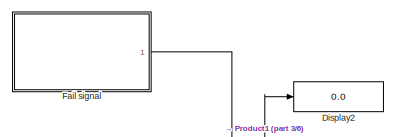
[diagram: root canvas - part 1/6, top left region]
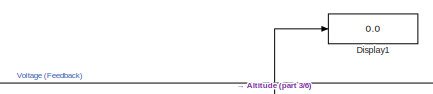
[diagram: root canvas - part 2/6, top center region]
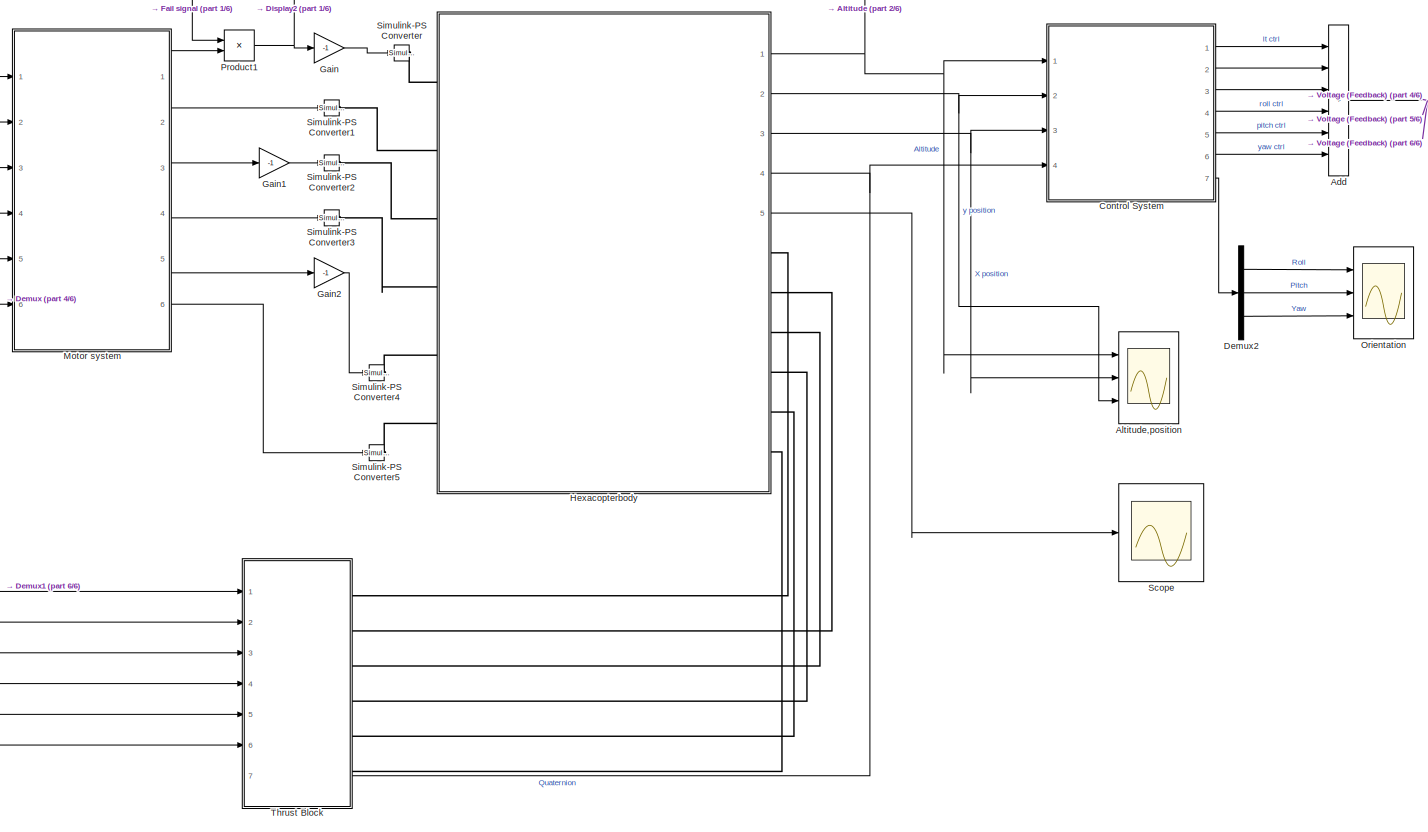
[diagram: root canvas - part 3/6, most of the canvas]
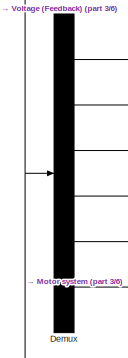
[diagram: root canvas - part 4/6, middle left region]
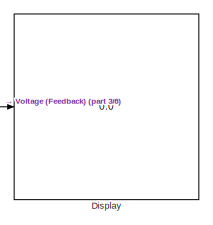
[diagram: root canvas - part 5/6, middle right region]
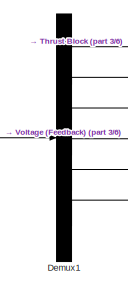
[diagram: root canvas - part 6/6, bottom left region]
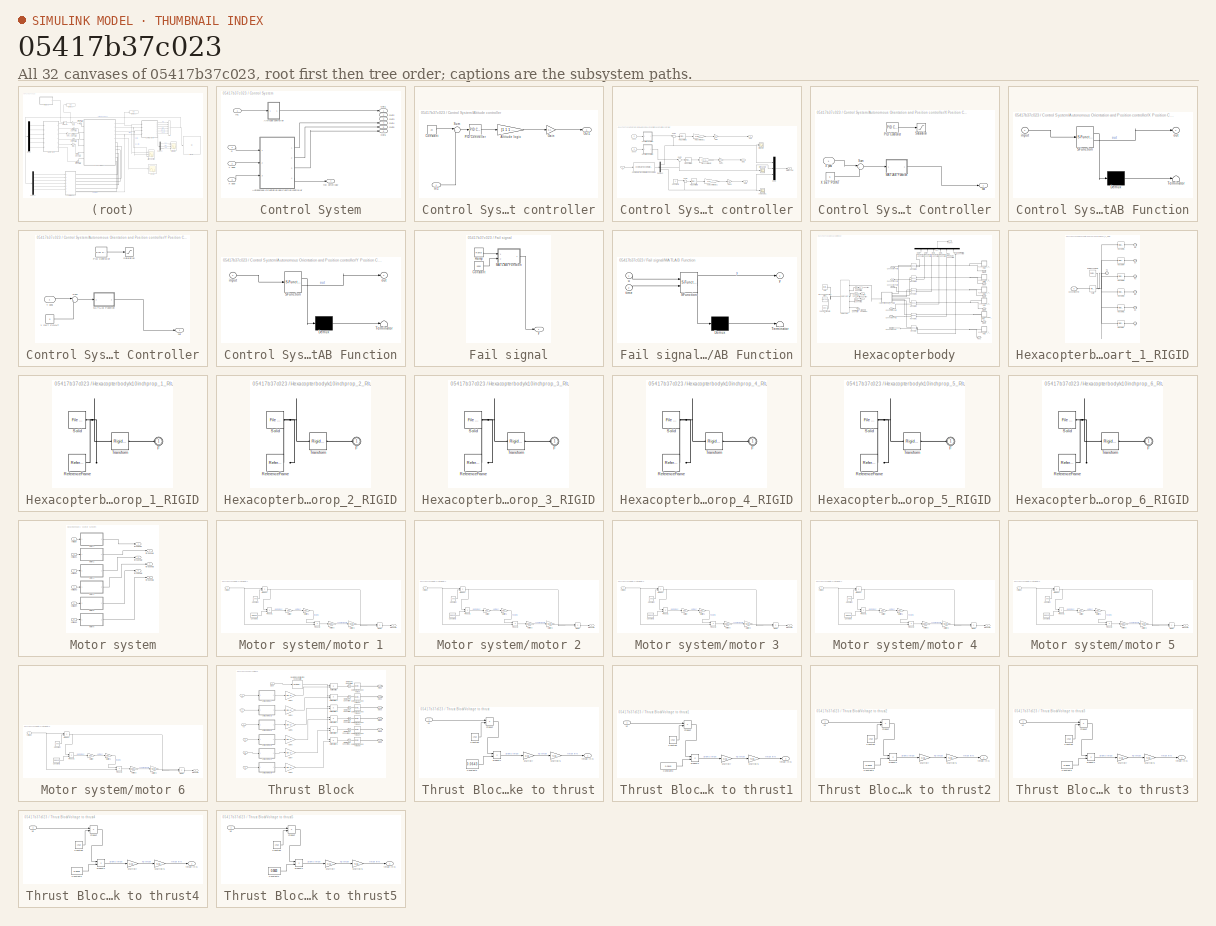
[diagram: thumbnail index - all 32 canvases of the model, root first then tree order]
MODEL slx_05417b37c023
KIND model
CONFIG AbsTol = auto
CONFIG EnableMultiTasking = off
CONFIG FixedStep = auto
CONFIG MaxStep = auto
CONFIG MinStep = auto
CONFIG RelTol = 1e-3
CONFIG SampleTimeConstraint = Unconstrained
CONFIG Solver = VariableStepAuto
CONFIG SolverName = VariableStepAuto
CONFIG StartTime = 0.0
CONFIG StopTime = 100
WORKSPACE source: external: MATLAB File  (data not in archive)
BLOCK [Sum] Add
  IconShape = rectangular
  Inputs = ++++++
  Ports = [6, 1]
BLOCK [Scope] Altitude,position
  Floating = off
  NumInputPorts = 3
  Ports = [3]
  ScopeSpecificationString = Simulink.scopes.TimeScopeBlockCfg('CurrentConfiguration', extmgr.ConfigurationSet(extmgr.Configuration('Core','General UI',true),extmgr.Configuration('Core','Source UI',true),extmgr.Configuration('Sources','WiredSimulink',true),extmgr.Configuration('Visuals','Time Domain',true,'SerializedDisplays',{struct('MinYLimReal','-3.1895','MaxYLimReal','22.89625','YLabelReal','','MinYLimMag','0.00000','MaxY...<+1501ch>
BLOCK [SubSystem] Control System
  Ports = [4, 7]
  RequestExecContextInheritance = off
BLOCK [SubSystem] Control System/Altitude controller
  Ports = [1, 1]
  RequestExecContextInheritance = off
BLOCK [Gain] Control System/Altitude controller/Altitude logic
  Gain = [1 1 1 1 1 1]
BLOCK [Constant] Control System/Altitude controller/Constant
  Value = 20
BLOCK [Gain] Control System/Altitude controller/Gain
  Gain = 0.1
BLOCK [Inport] Control System/Altitude controller/In1
BLOCK [Outport] Control System/Altitude controller/Out1
BLOCK [Reference] Control System/Altitude controller/PID Controller  REF=simulink/Continuous/PID Controller
  Ports = [1, 1]
  SourceBlock = simulink/Continuous/PID Controller
  SourceProductBaseCode = SL
  SourceType = PID 1dof
BLOCK [Sum] Control System/Altitude controller/Sum
  Inputs = |+-
  Ports = [2, 1]
BLOCK [SubSystem] Control System/Autonomous Orientation and Position controller
  Ports = [3, 4]
  RequestExecContextInheritance = off
BLOCK [Constant] Control System/Autonomous Orientation and Position controller/Constant3
  Value = 0
BLOCK [Reference] Control System/Autonomous Orientation and Position controller/Coordinate Transformation Conversion  REF=robotcorelib/Coordinate Transformation Conversion
  Ports = [1, 1]
  SourceBlock = robotcorelib/Coordinate Transformation Conversion
  SourceProductBaseCode = NV,RO,RR
  SourceType = robotics.slcore.internal.block.CoordinateTransformationConversion
BLOCK [Demux] Control System/Autonomous Orientation and Position controller/Demux2
  Outputs = 3
  Ports = [1, 3]
BLOCK [Gain] Control System/Autonomous Orientation and Position controller/Gain
  Gain = 0.1
BLOCK [Gain] Control System/Autonomous Orientation and Position controller/Gain1
  Gain = 0.1
BLOCK [Gain] Control System/Autonomous Orientation and Position controller/Gain8
  Gain = 0.1
BLOCK [Mux] Control System/Autonomous Orientation and Position controller/Mux1
  DisplayOption = bar
  Inputs = 3
  Ports = [3, 1]
BLOCK [Outport] Control System/Autonomous Orientation and Position controller/Out1
BLOCK [Outport] Control System/Autonomous Orientation and Position controller/Out2
  Port = 2
BLOCK [Outport] Control System/Autonomous Orientation and Position controller/Out3
  Port = 3
BLOCK [Reference] Control System/Autonomous Orientation and Position controller/PID Controller1  REF=simulink/Continuous/PID Controller
  Ports = [1, 1]
  SourceBlock = simulink/Continuous/PID Controller
  SourceProductBaseCode = SL
  SourceType = PID 1dof
BLOCK [Reference] Control System/Autonomous Orientation and Position controller/PID Controller2  REF=simulink/Continuous/PID Controller
  Ports = [1, 1]
  SourceBlock = simulink/Continuous/PID Controller
  SourceProductBaseCode = SL
  SourceType = PID 1dof
BLOCK [Reference] Control System/Autonomous Orientation and Position controller/PID Controller3  REF=simulink/Continuous/PID Controller
  Ports = [1, 1]
  SourceBlock = simulink/Continuous/PID Controller
  SourceProductBaseCode = SL
  SourceType = PID 1dof
BLOCK [Gain] Control System/Autonomous Orientation and Position controller/Roll control logic1
  Gain = [-1 0 1 1 0 -1]
BLOCK [Sum] Control System/Autonomous Orientation and Position controller/Sum1
  Inputs = |+-
  Ports = [2, 1]
BLOCK [Sum] Control System/Autonomous Orientation and Position controller/Sum2
  Inputs = |+-
  Ports = [2, 1]
BLOCK [Sum] Control System/Autonomous Orientation and Position controller/Sum3
  Inputs = |+-
  Ports = [2, 1]
BLOCK [SubSystem] Control System/Autonomous Orientation and Position controller/X Position Controller
  Ports = [1, 1]
  RequestExecContextInheritance = off
BLOCK [SubSystem] Control System/Autonomous Orientation and Position controller/X Position Controller/MATLAB Function
  ErrorFcn = Stateflow.Translate.translate
  PermitHierarchicalResolution = ExplicitOnly
  Ports = [1, 1]
  RequestExecContextInheritance = off
  SFBlockType = MATLAB Function
  TreatAsAtomicUnit = on
BLOCK [Demux] Control System/Autonomous Orientation and Position controller/X Position Controller/MATLAB Function/ Demux 
  Outputs = 1
  Ports = [1, 1]
BLOCK [S-Function] Control System/Autonomous Orientation and Position controller/X Position Controller/MATLAB Function/ SFunction 
  EnableBusSupport = on
  FunctionName = sf_sfun
  PortCounts = [1 2]
  Ports = [1, 2]
  SFcnIsStateOwnerBlock = off
  SFunctionDeploymentMode = off
  Tag = Stateflow S-Function 3
BLOCK [Terminator] Control System/Autonomous Orientation and Position controller/X Position Controller/MATLAB Function/ Terminator 
BLOCK [Inport] Control System/Autonomous Orientation and Position controller/X Position Controller/MATLAB Function/input
BLOCK [Outport] Control System/Autonomous Orientation and Position controller/X Position Controller/MATLAB Function/out
BLOCK [Reference] Control System/Autonomous Orientation and Position controller/X Position Controller/PID Controller  REF=simulink/Continuous/PID Controller
  Ports = [1, 1]
  SourceBlock = simulink/Continuous/PID Controller
  SourceProductBaseCode = SL
  SourceType = PID 1dof
BLOCK [Saturate] Control System/Autonomous Orientation and Position controller/X Position Controller/Saturation
  LowerLimit = -0.15
  UpperLimit = 0.15
BLOCK [Sum] Control System/Autonomous Orientation and Position controller/X Position Controller/Sum
  Inputs = |+-
  Ports = [2, 1]
BLOCK [Constant] Control System/Autonomous Orientation and Position controller/X Position Controller/X SET POINT
  Value = 5
BLOCK [Inport] Control System/Autonomous Orientation and Position controller/X Position Controller/X posi
BLOCK [Outport] Control System/Autonomous Orientation and Position controller/X Position Controller/out
BLOCK [Inport] Control System/Autonomous Orientation and Position controller/X posi
  Port = 3
BLOCK [SubSystem] Control System/Autonomous Orientation and Position controller/Y Position Controller
  Ports = [1, 1]
  RequestExecContextInheritance = off
BLOCK [SubSystem] Control System/Autonomous Orientation and Position controller/Y Position Controller/MATLAB Function
  ErrorFcn = Stateflow.Translate.translate
  PermitHierarchicalResolution = ExplicitOnly
  Ports = [1, 1]
  RequestExecContextInheritance = off
  SFBlockType = MATLAB Function
  TreatAsAtomicUnit = on
BLOCK [Demux] Control System/Autonomous Orientation and Position controller/Y Position Controller/MATLAB Function/ Demux 
  Outputs = 1
  Ports = [1, 1]
BLOCK [S-Function] Control System/Autonomous Orientation and Position controller/Y Position Controller/MATLAB Function/ SFunction 
  EnableBusSupport = on
  FunctionName = sf_sfun
  PortCounts = [1 2]
  Ports = [1, 2]
  SFcnIsStateOwnerBlock = off
  SFunctionDeploymentMode = off
  Tag = Stateflow S-Function 2
BLOCK [Terminator] Control System/Autonomous Orientation and Position controller/Y Position Controller/MATLAB Function/ Terminator 
BLOCK [Inport] Control System/Autonomous Orientation and Position controller/Y Position Controller/MATLAB Function/input
BLOCK [Outport] Control System/Autonomous Orientation and Position controller/Y Position Controller/MATLAB Function/out
BLOCK [Reference] Control System/Autonomous Orientation and Position controller/Y Position Controller/PID Controller  REF=simulink/Continuous/PID Controller
  Ports = [1, 1]
  SourceBlock = simulink/Continuous/PID Controller
  SourceProductBaseCode = SL
  SourceType = PID 1dof
BLOCK [Saturate] Control System/Autonomous Orientation and Position controller/Y Position Controller/Saturation
  LowerLimit = -0.15
  UpperLimit = 0.15
BLOCK [Sum] Control System/Autonomous Orientation and Position controller/Y Position Controller/Sum
  Inputs = |+-
  Ports = [2, 1]
BLOCK [Constant] Control System/Autonomous Orientation and Position controller/Y Position Controller/Y SET POINT
  Value = 5
BLOCK [Inport] Control System/Autonomous Orientation and Position controller/Y Position Controller/Y posi
BLOCK [Outport] Control System/Autonomous Orientation and Position controller/Y Position Controller/out
BLOCK [Inport] Control System/Autonomous Orientation and Position controller/Y posi
  Port = 2
BLOCK [Gain] Control System/Autonomous Orientation and Position controller/Yaw control logic1
  Gain = [-1 1 -1 1 -1 1]
BLOCK [Scope] Control System/Autonomous Orientation and Position controller/pitch angle
  Floating = off
  NumInputPorts = 1
  Ports = [1]
  ScopeSpecificationString = Simulink.scopes.TimeScopeBlockCfg('CurrentConfiguration', extmgr.ConfigurationSet(extmgr.Configuration('Core','General UI',true),extmgr.Configuration('Core','Source UI',true),extmgr.Configuration('Sources','WiredSimulink',true,'DataLoggingVariableName','ScopeData2'),extmgr.Configuration('Visuals','Time Domain',true,'SerializedDisplays',{struct('MinYLimReal','-1.77145','MaxYLimReal','0.8522','YLabe...<+1422ch>
BLOCK [Gain] Control System/Autonomous Orientation and Position controller/pitch control logic
  Gain = [-1 -1 -1 1 1 1]
BLOCK [Inport] Control System/Autonomous Orientation and Position controller/q
BLOCK [Scope] Control System/Autonomous Orientation and Position controller/roll angle
  Floating = off
  NumInputPorts = 1
  Ports = [1]
  ScopeSpecificationString = Simulink.scopes.TimeScopeBlockCfg('CurrentConfiguration', extmgr.ConfigurationSet(extmgr.Configuration('Core','General UI',true),extmgr.Configuration('Core','Source UI',true),extmgr.Configuration('Sources','WiredSimulink',true,'DataLoggingVariableName','ScopeData1'),extmgr.Configuration('Visuals','Time Domain',true,'SerializedDisplays',{struct('MinYLimReal','-3.92629','MaxYLimReal','3.92676','YLab...<+1453ch>
BLOCK [Outport] Control System/Autonomous Orientation and Position controller/roll pitch yaw
  Port = 4
BLOCK [Scope] Control System/Autonomous Orientation and Position controller/yaw angle1
  Floating = off
  NumInputPorts = 1
  Ports = [1]
  ScopeSpecificationString = Simulink.scopes.TimeScopeBlockCfg('CurrentConfiguration', extmgr.ConfigurationSet(extmgr.Configuration('Core','General UI',true),extmgr.Configuration('Core','Source UI',true),extmgr.Configuration('Sources','WiredSimulink',true,'DataLoggingVariableName','ScopeData3'),extmgr.Configuration('Visuals','Time Domain',true,'SerializedDisplays',{struct('MinYLimReal','-0.04377','MaxYLimReal','0.00706','YLab...<+1404ch>
BLOCK [Inport] Control System/In1
BLOCK [Outport] Control System/Out1
BLOCK [Outport] Control System/Out2
  Port = 2
BLOCK [Outport] Control System/Out3
  Port = 3
BLOCK [Outport] Control System/Out4
  Port = 4
BLOCK [Outport] Control System/Out5
  Port = 5
BLOCK [Outport] Control System/Out6
  Port = 6
BLOCK [Inport] Control System/X posi
  Port = 3
BLOCK [Inport] Control System/Y posi
  Port = 2
BLOCK [Inport] Control System/q
  Port = 4
BLOCK [Outport] Control System/roll pitch yaw
  Port = 7
BLOCK [Demux] Demux
  Outputs = 6
  Ports = [1, 6]
BLOCK [Demux] Demux1
  Outputs = 6
  Ports = [1, 6]
BLOCK [Demux] Demux2
  Outputs = 3
  Ports = [1, 3]
BLOCK [Display] Display
  Decimation = 1
  Format = long
  Ports = [1]
BLOCK [Display] Display1
  Decimation = 1
  Ports = [1]
BLOCK [Display] Display2
  Decimation = 1
  Ports = [1]
BLOCK [SubSystem] Fail signal
  Ports = [0, 1]
  RequestExecContextInheritance = off
BLOCK [Constant] Fail signal/Constant
  Value = 1000
BLOCK [SubSystem] Fail signal/MATLAB Function
  ErrorFcn = Stateflow.Translate.translate
  PermitHierarchicalResolution = ExplicitOnly
  Ports = [2, 1]
  RequestExecContextInheritance = off
  SFBlockType = MATLAB Function
  TreatAsAtomicUnit = on
BLOCK [Demux] Fail signal/MATLAB Function/ Demux 
  Outputs = 1
  Ports = [1, 1]
BLOCK [S-Function] Fail signal/MATLAB Function/ SFunction 
  EnableBusSupport = on
  FunctionName = sf_sfun
  PortCounts = [2 2]
  Ports = [2, 2]
  SFcnIsStateOwnerBlock = off
  SFunctionDeploymentMode = off
  Tag = Stateflow S-Function 1
BLOCK [Terminator] Fail signal/MATLAB Function/ Terminator 
BLOCK [Inport] Fail signal/MATLAB Function/time
  Port = 2
BLOCK [Inport] Fail signal/MATLAB Function/u
BLOCK [Outport] Fail signal/MATLAB Function/y
BLOCK [Reference] Fail signal/Ramp  REF=simulink/Sources/Ramp
  Ports = [0, 1]
  SourceBlock = simulink/Sources/Ramp
  SourceProductBaseCode = SL
  SourceType = Ramp
BLOCK [Outport] Fail signal/y
BLOCK [Gain] Gain
  Gain = -1
BLOCK [Gain] Gain1
  Gain = -1
BLOCK [Gain] Gain2
  Gain = -1
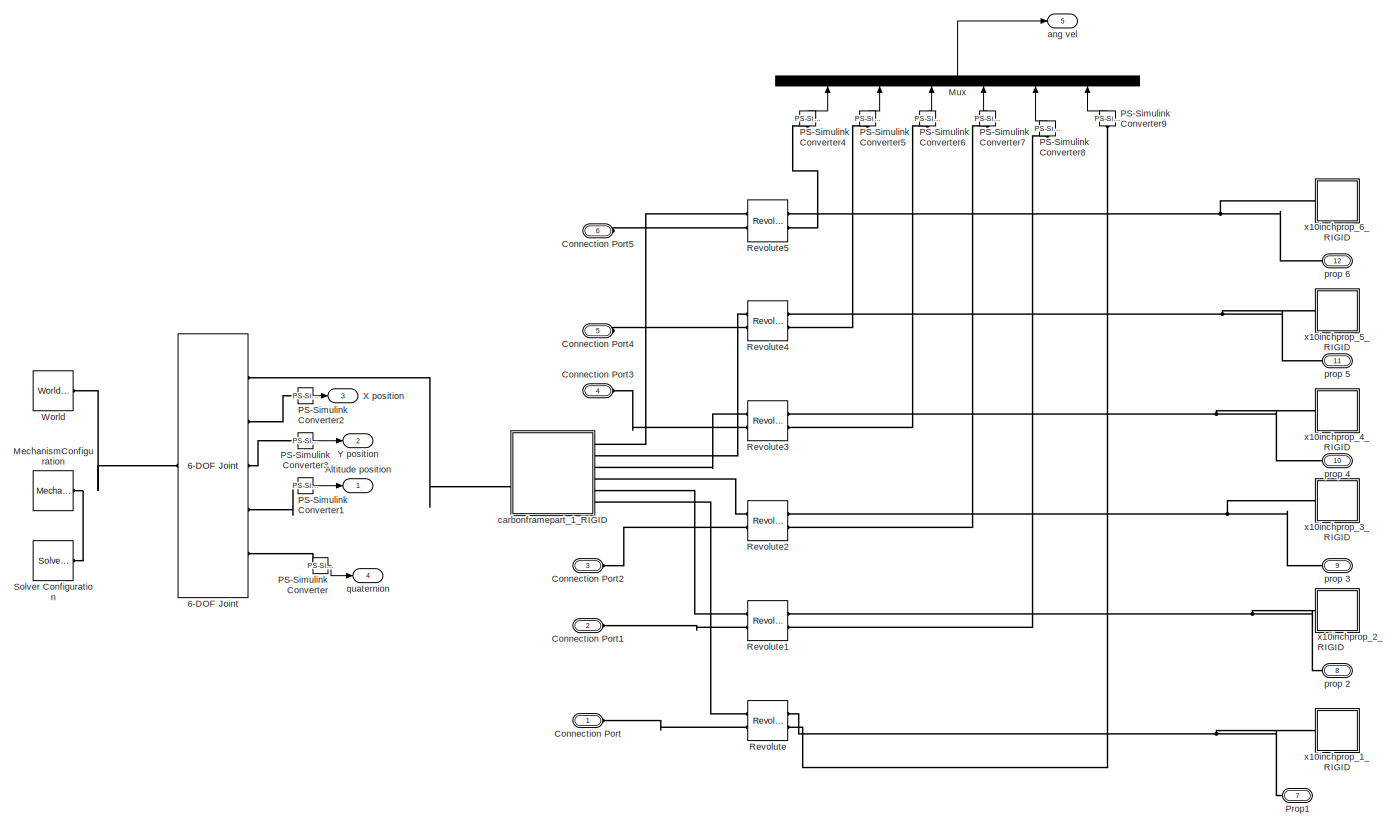
[diagram: Hexacopterbody - part 1/1, most of the canvas]
BLOCK [SubSystem] Hexacopterbody
  Ports = [0, 5, 0, 0, 0, 6, 6]
  RequestExecContextInheritance = off
BLOCK [Reference] Hexacopterbody/6-DOF Joint  REF=sm_lib/Joints/6-DOF Joint
  Ports = [0, 0, 0, 0, 0, 1, 5]
  SourceBlock = sm_lib/Joints/6-DOF Joint
  SourceProductBaseCode = MS
  SourceType = 6-DOF Joint
BLOCK [Outport] Hexacopterbody/Altitude position
BLOCK [PMIOPort] Hexacopterbody/Connection Port
  Side = Left
BLOCK [PMIOPort] Hexacopterbody/Connection Port1
  Port = 2
  Side = Left
BLOCK [PMIOPort] Hexacopterbody/Connection Port2
  Port = 3
  Side = Left
BLOCK [PMIOPort] Hexacopterbody/Connection Port3
  Port = 4
  Side = Left
BLOCK [PMIOPort] Hexacopterbody/Connection Port4
  Port = 5
  Side = Left
BLOCK [PMIOPort] Hexacopterbody/Connection Port5
  Port = 6
  Side = Left
BLOCK [Reference] Hexacopterbody/MechanismConfiguration  REF=sm_lib/Utilities/Mechanism
Configuration
  Ports = [0, 0, 0, 0, 0, 0, 1]
  SourceBlock = sm_lib/Utilities/Mechanism\nConfiguration
  SourceProductBaseCode = MS
  SourceType = Mechanism\nConfiguration
BLOCK [Mux] Hexacopterbody/Mux
  DisplayOption = bar
  Inputs = 6
  NameLocation = right
  Ports = [6, 1]
BLOCK [Reference] Hexacopterbody/PS-Simulink Converter  REF=nesl_utility/PS-Simulink
Converter
  Ports = [0, 1, 0, 0, 0, 1]
  SourceBlock = nesl_utility/PS-Simulink\nConverter
  SourceProductBaseCode = SS
  SourceType = PS-Simulink\nConverter
BLOCK [Reference] Hexacopterbody/PS-Simulink Converter1  REF=nesl_utility/PS-Simulink
Converter
  Ports = [0, 1, 0, 0, 0, 1]
  SourceBlock = nesl_utility/PS-Simulink\nConverter
  SourceProductBaseCode = SS
  SourceType = PS-Simulink\nConverter
BLOCK [Reference] Hexacopterbody/PS-Simulink Converter2  REF=nesl_utility/PS-Simulink
Converter
  Ports = [0, 1, 0, 0, 0, 1]
  SourceBlock = nesl_utility/PS-Simulink\nConverter
  SourceProductBaseCode = SS
  SourceType = PS-Simulink\nConverter
BLOCK [Reference] Hexacopterbody/PS-Simulink Converter3  REF=nesl_utility/PS-Simulink
Converter
  Ports = [0, 1, 0, 0, 0, 1]
  SourceBlock = nesl_utility/PS-Simulink\nConverter
  SourceProductBaseCode = SS
  SourceType = PS-Simulink\nConverter
BLOCK [Reference] Hexacopterbody/PS-Simulink Converter4  REF=nesl_utility/PS-Simulink
Converter
  NameLocation = right
  Ports = [0, 1, 0, 0, 0, 1]
  SourceBlock = nesl_utility/PS-Simulink\nConverter
  SourceProductBaseCode = SS
  SourceType = PS-Simulink\nConverter
BLOCK [Reference] Hexacopterbody/PS-Simulink Converter5  REF=nesl_utility/PS-Simulink
Converter
  NameLocation = right
  Ports = [0, 1, 0, 0, 0, 1]
  SourceBlock = nesl_utility/PS-Simulink\nConverter
  SourceProductBaseCode = SS
  SourceType = PS-Simulink\nConverter
BLOCK [Reference] Hexacopterbody/PS-Simulink Converter6  REF=nesl_utility/PS-Simulink
Converter
  NameLocation = right
  Ports = [0, 1, 0, 0, 0, 1]
  SourceBlock = nesl_utility/PS-Simulink\nConverter
  SourceProductBaseCode = SS
  SourceType = PS-Simulink\nConverter
BLOCK [Reference] Hexacopterbody/PS-Simulink Converter7  REF=nesl_utility/PS-Simulink
Converter
  NameLocation = right
  Ports = [0, 1, 0, 0, 0, 1]
  SourceBlock = nesl_utility/PS-Simulink\nConverter
  SourceProductBaseCode = SS
  SourceType = PS-Simulink\nConverter
BLOCK [Reference] Hexacopterbody/PS-Simulink Converter8  REF=nesl_utility/PS-Simulink
Converter
  NameLocation = right
  Ports = [0, 1, 0, 0, 0, 1]
  SourceBlock = nesl_utility/PS-Simulink\nConverter
  SourceProductBaseCode = SS
  SourceType = PS-Simulink\nConverter
BLOCK [Reference] Hexacopterbody/PS-Simulink Converter9  REF=nesl_utility/PS-Simulink
Converter
  NameLocation = right
  Ports = [0, 1, 0, 0, 0, 1]
  SourceBlock = nesl_utility/PS-Simulink\nConverter
  SourceProductBaseCode = SS
  SourceType = PS-Simulink\nConverter
BLOCK [PMIOPort] Hexacopterbody/Prop1
  NameLocation = right
  Port = 7
  Side = Right
BLOCK [Reference] Hexacopterbody/Revolute  REF=sm_lib/Joints/Revolute Joint
  Ports = [0, 0, 0, 0, 0, 2, 2]
  SourceBlock = sm_lib/Joints/Revolute Joint
  SourceProductBaseCode = MS
  SourceType = Revolute Joint
BLOCK [Reference] Hexacopterbody/Revolute1  REF=sm_lib/Joints/Revolute Joint
  Ports = [0, 0, 0, 0, 0, 2, 2]
  SourceBlock = sm_lib/Joints/Revolute Joint
  SourceProductBaseCode = MS
  SourceType = Revolute Joint
BLOCK [Reference] Hexacopterbody/Revolute2  REF=sm_lib/Joints/Revolute Joint
  Ports = [0, 0, 0, 0, 0, 2, 2]
  SourceBlock = sm_lib/Joints/Revolute Joint
  SourceProductBaseCode = MS
  SourceType = Revolute Joint
BLOCK [Reference] Hexacopterbody/Revolute3  REF=sm_lib/Joints/Revolute Joint
  Ports = [0, 0, 0, 0, 0, 2, 2]
  SourceBlock = sm_lib/Joints/Revolute Joint
  SourceProductBaseCode = MS
  SourceType = Revolute Joint
BLOCK [Reference] Hexacopterbody/Revolute4  REF=sm_lib/Joints/Revolute Joint
  Ports = [0, 0, 0, 0, 0, 2, 2]
  SourceBlock = sm_lib/Joints/Revolute Joint
  SourceProductBaseCode = MS
  SourceType = Revolute Joint
BLOCK [Reference] Hexacopterbody/Revolute5  REF=sm_lib/Joints/Revolute Joint
  Ports = [0, 0, 0, 0, 0, 2, 2]
  SourceBlock = sm_lib/Joints/Revolute Joint
  SourceProductBaseCode = MS
  SourceType = Revolute Joint
BLOCK [Reference] Hexacopterbody/Solver Configuration  REF=nesl_utility/Solver
Configuration
  Ports = [0, 0, 0, 0, 0, 0, 1]
  SourceBlock = nesl_utility/Solver\nConfiguration
  SourceProductBaseCode = SS
  SourceType = Solver\nConfiguration
BLOCK [Reference] Hexacopterbody/World  REF=sm_lib/Frames and
Transforms/World Frame
  Ports = [0, 0, 0, 0, 0, 0, 1]
  SourceBlock = sm_lib/Frames and\nTransforms/World Frame
  SourceProductBaseCode = MS
  SourceType = World Frame
BLOCK [Outport] Hexacopterbody/X position
  Port = 3
BLOCK [Outport] Hexacopterbody/Y position
  Port = 2
BLOCK [Outport] Hexacopterbody/ang vel
  Port = 5
BLOCK [SubSystem] Hexacopterbody/carbonframepart_1_RIGID
  Ports = [0, 0, 0, 0, 0, 2, 6]
  RequestExecContextInheritance = off
BLOCK [PMIOPort] Hexacopterbody/carbonframepart_1_RIGID/Connection Port
  Port = 8
  Side = Left
  Tag = PMCPort
BLOCK [PMIOPort] Hexacopterbody/carbonframepart_1_RIGID/F
  Port = 7
  Side = Right
BLOCK [PMIOPort] Hexacopterbody/carbonframepart_1_RIGID/F1
  Port = 6
  Side = Right
BLOCK [PMIOPort] Hexacopterbody/carbonframepart_1_RIGID/F2
  Port = 5
  Side = Right
BLOCK [PMIOPort] Hexacopterbody/carbonframepart_1_RIGID/F3
  Port = 4
  Side = Right
BLOCK [PMIOPort] Hexacopterbody/carbonframepart_1_RIGID/F4
  Port = 3
  Side = Right
BLOCK [PMIOPort] Hexacopterbody/carbonframepart_1_RIGID/F5
  Port = 2
  Side = Right
BLOCK [PMIOPort] Hexacopterbody/carbonframepart_1_RIGID/F6
  Side = Left
BLOCK [Reference] Hexacopterbody/carbonframepart_1_RIGID/ReferenceFrame  REF=sm_lib/Frames and
Transforms/Reference
Frame
  Ports = [0, 0, 0, 0, 0, 0, 1]
  SourceBlock = sm_lib/Frames and\nTransforms/Reference\nFrame
  SourceProductBaseCode = MS
  SourceType = Reference\nFrame
BLOCK [Reference] Hexacopterbody/carbonframepart_1_RIGID/Solid  REF=sm_lib/Body Elements/File Solid
  Ports = [0, 0, 0, 0, 0, 1, 1]
  SourceBlock = sm_lib/Body Elements/File Solid
  SourceProductBaseCode = MS
  SourceType = File Solid
BLOCK [Reference] Hexacopterbody/carbonframepart_1_RIGID/Transform  REF=sm_lib/Frames and
Transforms/Rigid
Transform
  Ports = [0, 0, 0, 0, 0, 1, 1]
  SourceBlock = sm_lib/Frames and\nTransforms/Rigid\nTransform
  SourceProductBaseCode = MS
  SourceType = Rigid\nTransform
BLOCK [Reference] Hexacopterbody/carbonframepart_1_RIGID/Transform1  REF=sm_lib/Frames and
Transforms/Rigid
Transform
  Ports = [0, 0, 0, 0, 0, 1, 1]
  SourceBlock = sm_lib/Frames and\nTransforms/Rigid\nTransform
  SourceProductBaseCode = MS
  SourceType = Rigid\nTransform
BLOCK [Reference] Hexacopterbody/carbonframepart_1_RIGID/Transform2  REF=sm_lib/Frames and
Transforms/Rigid
Transform
  Ports = [0, 0, 0, 0, 0, 1, 1]
  SourceBlock = sm_lib/Frames and\nTransforms/Rigid\nTransform
  SourceProductBaseCode = MS
  SourceType = Rigid\nTransform
BLOCK [Reference] Hexacopterbody/carbonframepart_1_RIGID/Transform3  REF=sm_lib/Frames and
Transforms/Rigid
Transform
  Ports = [0, 0, 0, 0, 0, 1, 1]
  SourceBlock = sm_lib/Frames and\nTransforms/Rigid\nTransform
  SourceProductBaseCode = MS
  SourceType = Rigid\nTransform
BLOCK [Reference] Hexacopterbody/carbonframepart_1_RIGID/Transform4  REF=sm_lib/Frames and
Transforms/Rigid
Transform
  Ports = [0, 0, 0, 0, 0, 1, 1]
  SourceBlock = sm_lib/Frames and\nTransforms/Rigid\nTransform
  SourceProductBaseCode = MS
  SourceType = Rigid\nTransform
BLOCK [Reference] Hexacopterbody/carbonframepart_1_RIGID/Transform5  REF=sm_lib/Frames and
Transforms/Rigid
Transform
  Ports = [0, 0, 0, 0, 0, 1, 1]
  SourceBlock = sm_lib/Frames and\nTransforms/Rigid\nTransform
  SourceProductBaseCode = MS
  SourceType = Rigid\nTransform
BLOCK [PMIOPort] Hexacopterbody/prop 2
  Port = 8
  Side = Right
BLOCK [PMIOPort] Hexacopterbody/prop 3
  Port = 9
  Side = Right
BLOCK [PMIOPort] Hexacopterbody/prop 4
  Port = 10
  Side = Right
BLOCK [PMIOPort] Hexacopterbody/prop 5
  Port = 11
  Side = Right
BLOCK [PMIOPort] Hexacopterbody/prop 6
  Port = 12
  Side = Right
BLOCK [Outport] Hexacopterbody/quaternion
  Port = 4
BLOCK [SubSystem] Hexacopterbody/x10inchprop_1_RIGID
  Ports = [0, 0, 0, 0, 0, 1]
  RequestExecContextInheritance = off
BLOCK [PMIOPort] Hexacopterbody/x10inchprop_1_RIGID/F
  Side = Left
BLOCK [Reference] Hexacopterbody/x10inchprop_1_RIGID/ReferenceFrame  REF=sm_lib/Frames and
Transforms/Reference
Frame
  Ports = [0, 0, 0, 0, 0, 0, 1]
  SourceBlock = sm_lib/Frames and\nTransforms/Reference\nFrame
  SourceProductBaseCode = MS
  SourceType = Reference\nFrame
BLOCK [Reference] Hexacopterbody/x10inchprop_1_RIGID/Solid  REF=sm_lib/Body Elements/File Solid
  Ports = [0, 0, 0, 0, 0, 0, 1]
  SourceBlock = sm_lib/Body Elements/File Solid
  SourceProductBaseCode = MS
  SourceType = File Solid
BLOCK [Reference] Hexacopterbody/x10inchprop_1_RIGID/Transform  REF=sm_lib/Frames and
Transforms/Rigid
Transform
  Ports = [0, 0, 0, 0, 0, 1, 1]
  SourceBlock = sm_lib/Frames and\nTransforms/Rigid\nTransform
  SourceProductBaseCode = MS
  SourceType = Rigid\nTransform
BLOCK [SubSystem] Hexacopterbody/x10inchprop_2_RIGID
  Ports = [0, 0, 0, 0, 0, 1]
  RequestExecContextInheritance = off
BLOCK [PMIOPort] Hexacopterbody/x10inchprop_2_RIGID/F
  Side = Left
BLOCK [Reference] Hexacopterbody/x10inchprop_2_RIGID/ReferenceFrame  REF=sm_lib/Frames and
Transforms/Reference
Frame
  Ports = [0, 0, 0, 0, 0, 0, 1]
  SourceBlock = sm_lib/Frames and\nTransforms/Reference\nFrame
  SourceProductBaseCode = MS
  SourceType = Reference\nFrame
BLOCK [Reference] Hexacopterbody/x10inchprop_2_RIGID/Solid  REF=sm_lib/Body Elements/File Solid
  Ports = [0, 0, 0, 0, 0, 0, 1]
  SourceBlock = sm_lib/Body Elements/File Solid
  SourceProductBaseCode = MS
  SourceType = File Solid
BLOCK [Reference] Hexacopterbody/x10inchprop_2_RIGID/Transform  REF=sm_lib/Frames and
Transforms/Rigid
Transform
  Ports = [0, 0, 0, 0, 0, 1, 1]
  SourceBlock = sm_lib/Frames and\nTransforms/Rigid\nTransform
  SourceProductBaseCode = MS
  SourceType = Rigid\nTransform
BLOCK [SubSystem] Hexacopterbody/x10inchprop_3_RIGID
  Ports = [0, 0, 0, 0, 0, 1]
  RequestExecContextInheritance = off
BLOCK [PMIOPort] Hexacopterbody/x10inchprop_3_RIGID/F
  Side = Left
BLOCK [Reference] Hexacopterbody/x10inchprop_3_RIGID/ReferenceFrame  REF=sm_lib/Frames and
Transforms/Reference
Frame
  Ports = [0, 0, 0, 0, 0, 0, 1]
  SourceBlock = sm_lib/Frames and\nTransforms/Reference\nFrame
  SourceProductBaseCode = MS
  SourceType = Reference\nFrame
BLOCK [Reference] Hexacopterbody/x10inchprop_3_RIGID/Solid  REF=sm_lib/Body Elements/File Solid
  Ports = [0, 0, 0, 0, 0, 0, 1]
  SourceBlock = sm_lib/Body Elements/File Solid
  SourceProductBaseCode = MS
  SourceType = File Solid
BLOCK [Reference] Hexacopterbody/x10inchprop_3_RIGID/Transform  REF=sm_lib/Frames and
Transforms/Rigid
Transform
  Ports = [0, 0, 0, 0, 0, 1, 1]
  SourceBlock = sm_lib/Frames and\nTransforms/Rigid\nTransform
  SourceProductBaseCode = MS
  SourceType = Rigid\nTransform
BLOCK [SubSystem] Hexacopterbody/x10inchprop_4_RIGID
  Ports = [0, 0, 0, 0, 0, 1]
  RequestExecContextInheritance = off
BLOCK [PMIOPort] Hexacopterbody/x10inchprop_4_RIGID/F
  Side = Left
BLOCK [Reference] Hexacopterbody/x10inchprop_4_RIGID/ReferenceFrame  REF=sm_lib/Frames and
Transforms/Reference
Frame
  Ports = [0, 0, 0, 0, 0, 0, 1]
  SourceBlock = sm_lib/Frames and\nTransforms/Reference\nFrame
  SourceProductBaseCode = MS
  SourceType = Reference\nFrame
BLOCK [Reference] Hexacopterbody/x10inchprop_4_RIGID/Solid  REF=sm_lib/Body Elements/File Solid
  Ports = [0, 0, 0, 0, 0, 0, 1]
  SourceBlock = sm_lib/Body Elements/File Solid
  SourceProductBaseCode = MS
  SourceType = File Solid
BLOCK [Reference] Hexacopterbody/x10inchprop_4_RIGID/Transform  REF=sm_lib/Frames and
Transforms/Rigid
Transform
  Ports = [0, 0, 0, 0, 0, 1, 1]
  SourceBlock = sm_lib/Frames and\nTransforms/Rigid\nTransform
  SourceProductBaseCode = MS
  SourceType = Rigid\nTransform
BLOCK [SubSystem] Hexacopterbody/x10inchprop_5_RIGID
  Ports = [0, 0, 0, 0, 0, 1]
  RequestExecContextInheritance = off
BLOCK [PMIOPort] Hexacopterbody/x10inchprop_5_RIGID/F
  Side = Left
BLOCK [Reference] Hexacopterbody/x10inchprop_5_RIGID/ReferenceFrame  REF=sm_lib/Frames and
Transforms/Reference
Frame
  Ports = [0, 0, 0, 0, 0, 0, 1]
  SourceBlock = sm_lib/Frames and\nTransforms/Reference\nFrame
  SourceProductBaseCode = MS
  SourceType = Reference\nFrame
BLOCK [Reference] Hexacopterbody/x10inchprop_5_RIGID/Solid  REF=sm_lib/Body Elements/File Solid
  Ports = [0, 0, 0, 0, 0, 0, 1]
  SourceBlock = sm_lib/Body Elements/File Solid
  SourceProductBaseCode = MS
  SourceType = File Solid
BLOCK [Reference] Hexacopterbody/x10inchprop_5_RIGID/Transform  REF=sm_lib/Frames and
Transforms/Rigid
Transform
  Ports = [0, 0, 0, 0, 0, 1, 1]
  SourceBlock = sm_lib/Frames and\nTransforms/Rigid\nTransform
  SourceProductBaseCode = MS
  SourceType = Rigid\nTransform
BLOCK [SubSystem] Hexacopterbody/x10inchprop_6_RIGID
  Ports = [0, 0, 0, 0, 0, 1]
  RequestExecContextInheritance = off
BLOCK [PMIOPort] Hexacopterbody/x10inchprop_6_RIGID/F
  Side = Left
BLOCK [Reference] Hexacopterbody/x10inchprop_6_RIGID/ReferenceFrame  REF=sm_lib/Frames and
Transforms/Reference
Frame
  Ports = [0, 0, 0, 0, 0, 0, 1]
  SourceBlock = sm_lib/Frames and\nTransforms/Reference\nFrame
  SourceProductBaseCode = MS
  SourceType = Reference\nFrame
BLOCK [Reference] Hexacopterbody/x10inchprop_6_RIGID/Solid  REF=sm_lib/Body Elements/File Solid
  Ports = [0, 0, 0, 0, 0, 0, 1]
  SourceBlock = sm_lib/Body Elements/File Solid
  SourceProductBaseCode = MS
  SourceType = File Solid
BLOCK [Reference] Hexacopterbody/x10inchprop_6_RIGID/Transform  REF=sm_lib/Frames and
Transforms/Rigid
Transform
  Ports = [0, 0, 0, 0, 0, 1, 1]
  SourceBlock = sm_lib/Frames and\nTransforms/Rigid\nTransform
  SourceProductBaseCode = MS
  SourceType = Rigid\nTransform
BLOCK [SubSystem] Motor system
  Ports = [6, 6]
  RequestExecContextInheritance = off
BLOCK [SubSystem] Motor system/motor 1
  Ports = [1, 1]
  RequestExecContextInheritance = off
BLOCK [Constant] Motor system/motor 1/Constant
  Value = 1450
BLOCK [Constant] Motor system/motor 1/Constant2
  Value = 0.0643
BLOCK [Product] Motor system/motor 1/Divide
  Inputs = */
  Ports = [2, 1]
BLOCK [Gain] Motor system/motor 1/Multiply
  Gain = 0.01
BLOCK [Gain] Motor system/motor 1/Multiply1
  Gain = 9.81
BLOCK [Gain] Motor system/motor 1/Multiply2
  Gain = 0.001
BLOCK [Gain] Motor system/motor 1/Multiply3
  Gain = 9.548
BLOCK [Product] Motor system/motor 1/Product
  Ports = [2, 1]
BLOCK [Product] Motor system/motor 1/Product1
  Ports = [2, 1]
BLOCK [Product] Motor system/motor 1/Product2
  Ports = [2, 1]
BLOCK [Outport] Motor system/motor 1/torque NM
BLOCK [Inport] Motor system/motor 1/voltage
BLOCK [SubSystem] Motor system/motor 2
  Ports = [1, 1]
  RequestExecContextInheritance = off
BLOCK [Constant] Motor system/motor 2/Constant
  Value = 1450
BLOCK [Constant] Motor system/motor 2/Constant2
  Value = 0.0643
BLOCK [Product] Motor system/motor 2/Divide
  Inputs = */
  Ports = [2, 1]
BLOCK [Gain] Motor system/motor 2/Multiply
  Gain = 0.01
BLOCK [Gain] Motor system/motor 2/Multiply1
  Gain = 9.81
BLOCK [Gain] Motor system/motor 2/Multiply2
  Gain = 0.001
BLOCK [Gain] Motor system/motor 2/Multiply3
  Gain = 9.548
BLOCK [Product] Motor system/motor 2/Product
  Ports = [2, 1]
BLOCK [Product] Motor system/motor 2/Product1
  Ports = [2, 1]
BLOCK [Product] Motor system/motor 2/Product2
  Ports = [2, 1]
BLOCK [Outport] Motor system/motor 2/torque NM
BLOCK [Inport] Motor system/motor 2/voltage
BLOCK [SubSystem] Motor system/motor 3
  Ports = [1, 1]
  RequestExecContextInheritance = off
BLOCK [Constant] Motor system/motor 3/Constant
  Value = 1450
BLOCK [Constant] Motor system/motor 3/Constant2
  Value = 0.0643
BLOCK [Product] Motor system/motor 3/Divide
  Inputs = */
  Ports = [2, 1]
BLOCK [Gain] Motor system/motor 3/Multiply
  Gain = 0.01
BLOCK [Gain] Motor system/motor 3/Multiply1
  Gain = 9.81
BLOCK [Gain] Motor system/motor 3/Multiply2
  Gain = 0.001
BLOCK [Gain] Motor system/motor 3/Multiply3
  Gain = 9.548
BLOCK [Product] Motor system/motor 3/Product
  Ports = [2, 1]
BLOCK [Product] Motor system/motor 3/Product1
  Ports = [2, 1]
BLOCK [Product] Motor system/motor 3/Product2
  Ports = [2, 1]
BLOCK [Outport] Motor system/motor 3/torque NM
BLOCK [Inport] Motor system/motor 3/voltage
BLOCK [SubSystem] Motor system/motor 4
  Ports = [1, 1]
  RequestExecContextInheritance = off
BLOCK [Constant] Motor system/motor 4/Constant
  Value = 1450
BLOCK [Constant] Motor system/motor 4/Constant2
  Value = 0.0643
BLOCK [Product] Motor system/motor 4/Divide
  Inputs = */
  Ports = [2, 1]
BLOCK [Gain] Motor system/motor 4/Multiply
  Gain = 0.01
BLOCK [Gain] Motor system/motor 4/Multiply1
  Gain = 9.81
BLOCK [Gain] Motor system/motor 4/Multiply2
  Gain = 0.001
BLOCK [Gain] Motor system/motor 4/Multiply3
  Gain = 9.548
BLOCK [Product] Motor system/motor 4/Product
  Ports = [2, 1]
BLOCK [Product] Motor system/motor 4/Product1
  Ports = [2, 1]
BLOCK [Product] Motor system/motor 4/Product2
  Ports = [2, 1]
BLOCK [Outport] Motor system/motor 4/torque NM
BLOCK [Inport] Motor system/motor 4/voltage
BLOCK [SubSystem] Motor system/motor 5
  Ports = [1, 1]
  RequestExecContextInheritance = off
BLOCK [Constant] Motor system/motor 5/Constant
  Value = 1450
BLOCK [Constant] Motor system/motor 5/Constant2
  Value = 0.0643
BLOCK [Product] Motor system/motor 5/Divide
  Inputs = */
  Ports = [2, 1]
BLOCK [Gain] Motor system/motor 5/Multiply
  Gain = 0.01
BLOCK [Gain] Motor system/motor 5/Multiply1
  Gain = 9.81
BLOCK [Gain] Motor system/motor 5/Multiply2
  Gain = 0.001
BLOCK [Gain] Motor system/motor 5/Multiply3
  Gain = 9.548
BLOCK [Product] Motor system/motor 5/Product
  Ports = [2, 1]
BLOCK [Product] Motor system/motor 5/Product1
  Ports = [2, 1]
BLOCK [Product] Motor system/motor 5/Product2
  Ports = [2, 1]
BLOCK [Outport] Motor system/motor 5/torque NM
BLOCK [Inport] Motor system/motor 5/voltage
BLOCK [SubSystem] Motor system/motor 6
  Ports = [1, 1]
  RequestExecContextInheritance = off
BLOCK [Constant] Motor system/motor 6/Constant
  Value = 1450
BLOCK [Constant] Motor system/motor 6/Constant2
  Value = 0.0643
BLOCK [Product] Motor system/motor 6/Divide
  Inputs = */
  Ports = [2, 1]
BLOCK [Gain] Motor system/motor 6/Multiply
  Gain = 0.01
BLOCK [Gain] Motor system/motor 6/Multiply1
  Gain = 9.81
BLOCK [Gain] Motor system/motor 6/Multiply2
  Gain = 0.001
BLOCK [Gain] Motor system/motor 6/Multiply3
  Gain = 9.548
BLOCK [Product] Motor system/motor 6/Product
  Ports = [2, 1]
BLOCK [Product] Motor system/motor 6/Product1
  Ports = [2, 1]
BLOCK [Product] Motor system/motor 6/Product2
  Ports = [2, 1]
BLOCK [Outport] Motor system/motor 6/torque NM
BLOCK [Inport] Motor system/motor 6/voltage
BLOCK [Outport] Motor system/torque NM
BLOCK [Outport] Motor system/torque NM1
  Port = 2
BLOCK [Outport] Motor system/torque NM2
  Port = 3
BLOCK [Outport] Motor system/torque NM3
  Port = 4
BLOCK [Outport] Motor system/torque NM4
  Port = 5
BLOCK [Outport] Motor system/torque NM5
  Port = 6
BLOCK [Inport] Motor system/voltage
BLOCK [Inport] Motor system/voltage1
  Port = 2
BLOCK [Inport] Motor system/voltage2
  Port = 3
BLOCK [Inport] Motor system/voltage3
  Port = 4
BLOCK [Inport] Motor system/voltage4
  Port = 5
BLOCK [Inport] Motor system/voltage5
  Port = 6
BLOCK [Scope] Orientation
  Floating = off
  NumInputPorts = 3
  Ports = [3]
  ScopeSpecificationString = Simulink.scopes.TimeScopeBlockCfg('CurrentConfiguration', extmgr.ConfigurationSet(extmgr.Configuration('Core','General UI',true),extmgr.Configuration('Core','Source UI',true),extmgr.Configuration('Sources','WiredSimulink',true,'DataLoggingVariableName','ScopeData1'),extmgr.Configuration('Visuals','Time Domain',true,'SerializedDisplays',{struct('MinYLimReal','-0.01424','MaxYLimReal','0.0169','YLabe...<+3670ch>
BLOCK [Product] Product1
  Ports = [2, 1]
BLOCK [Scope] Scope
  Floating = off
  NumInputPorts = 1
  Ports = [1]
  ScopeSpecificationString = Simulink.scopes.TimeScopeBlockCfg('CurrentConfiguration', extmgr.ConfigurationSet(extmgr.Configuration('Core','General UI',true),extmgr.Configuration('Core','Source UI',true),extmgr.Configuration('Sources','WiredSimulink',true,'DataLoggingVariableName','ScopeData1'),extmgr.Configuration('Visuals','Time Domain',true,'SerializedDisplays',{struct('MinYLimReal','-13.2357','MaxYLimReal','13.2052','YLab...<+1742ch>
BLOCK [Reference] Simulink-PS Converter  REF=nesl_utility/Simulink-PS
Converter
  Ports = [1, 0, 0, 0, 0, 0, 1]
  SourceBlock = nesl_utility/Simulink-PS\nConverter
  SourceProductBaseCode = SS
  SourceType = Simulink-PS\nConverter
BLOCK [Reference] Simulink-PS Converter1  REF=nesl_utility/Simulink-PS
Converter
  Ports = [1, 0, 0, 0, 0, 0, 1]
  SourceBlock = nesl_utility/Simulink-PS\nConverter
  SourceProductBaseCode = SS
  SourceType = Simulink-PS\nConverter
BLOCK [Reference] Simulink-PS Converter2  REF=nesl_utility/Simulink-PS
Converter
  Ports = [1, 0, 0, 0, 0, 0, 1]
  SourceBlock = nesl_utility/Simulink-PS\nConverter
  SourceProductBaseCode = SS
  SourceType = Simulink-PS\nConverter
BLOCK [Reference] Simulink-PS Converter3  REF=nesl_utility/Simulink-PS
Converter
  Ports = [1, 0, 0, 0, 0, 0, 1]
  SourceBlock = nesl_utility/Simulink-PS\nConverter
  SourceProductBaseCode = SS
  SourceType = Simulink-PS\nConverter
BLOCK [Reference] Simulink-PS Converter4  REF=nesl_utility/Simulink-PS
Converter
  Ports = [1, 0, 0, 0, 0, 0, 1]
  SourceBlock = nesl_utility/Simulink-PS\nConverter
  SourceProductBaseCode = SS
  SourceType = Simulink-PS\nConverter
BLOCK [Reference] Simulink-PS Converter5  REF=nesl_utility/Simulink-PS
Converter
  Ports = [1, 0, 0, 0, 0, 0, 1]
  SourceBlock = nesl_utility/Simulink-PS\nConverter
  SourceProductBaseCode = SS
  SourceType = Simulink-PS\nConverter
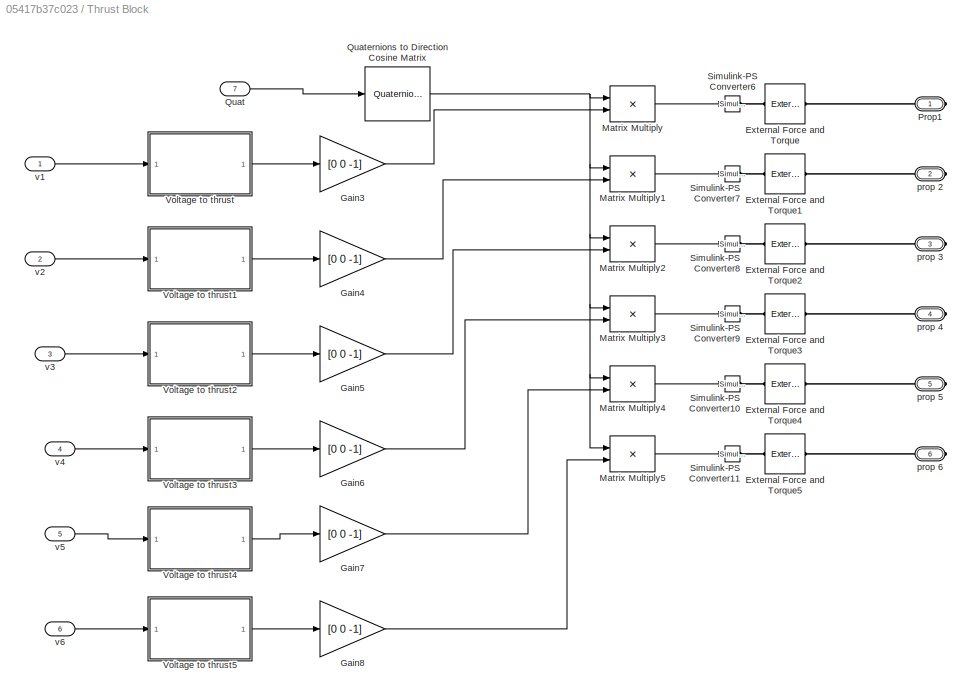
BLOCK [SubSystem] Thrust Block
  PortSchema = {"entries":[{"content":{"sides":[{"content":{"connectorIds":["In1","In2","In3","In4","In5","In6"]},"type":"ConnectorPlacement.EquallySpacedRectSide","uuid":"f334341b-c5e4-4237-b19a-19d0e8144dca"},{"content":{"connectorIds":["RConn1","RConn2","RConn3","RConn4","RConn5","RConn6"],"side":"RIGHT"},"type":"ConnectorPlacement.EquallySpacedRectSide","uuid":"4b4cb167-0589-4d29-bfb3-bc5fdaa2729f"},{"conten...<+324ch>
  Ports = [7, 0, 0, 0, 0, 0, 6]
  RequestExecContextInheritance = off
BLOCK [Reference] Thrust Block/External Force and Torque  REF=sm_lib/Forces and
Torques/External Force
and Torque
  Ports = [0, 0, 0, 0, 0, 1, 1]
  SourceBlock = sm_lib/Forces and\nTorques/External Force\nand Torque
  SourceProductBaseCode = MS
  SourceType = External Force\nand Torque
BLOCK [Reference] Thrust Block/External Force and Torque1  REF=sm_lib/Forces and
Torques/External Force
and Torque
  Ports = [0, 0, 0, 0, 0, 1, 1]
  SourceBlock = sm_lib/Forces and\nTorques/External Force\nand Torque
  SourceProductBaseCode = MS
  SourceType = External Force\nand Torque
BLOCK [Reference] Thrust Block/External Force and Torque2  REF=sm_lib/Forces and
Torques/External Force
and Torque
  Ports = [0, 0, 0, 0, 0, 1, 1]
  SourceBlock = sm_lib/Forces and\nTorques/External Force\nand Torque
  SourceProductBaseCode = MS
  SourceType = External Force\nand Torque
BLOCK [Reference] Thrust Block/External Force and Torque3  REF=sm_lib/Forces and
Torques/External Force
and Torque
  Ports = [0, 0, 0, 0, 0, 1, 1]
  SourceBlock = sm_lib/Forces and\nTorques/External Force\nand Torque
  SourceProductBaseCode = MS
  SourceType = External Force\nand Torque
BLOCK [Reference] Thrust Block/External Force and Torque4  REF=sm_lib/Forces and
Torques/External Force
and Torque
  Ports = [0, 0, 0, 0, 0, 1, 1]
  SourceBlock = sm_lib/Forces and\nTorques/External Force\nand Torque
  SourceProductBaseCode = MS
  SourceType = External Force\nand Torque
BLOCK [Reference] Thrust Block/External Force and Torque5  REF=sm_lib/Forces and
Torques/External Force
and Torque
  Ports = [0, 0, 0, 0, 0, 1, 1]
  SourceBlock = sm_lib/Forces and\nTorques/External Force\nand Torque
  SourceProductBaseCode = MS
  SourceType = External Force\nand Torque
BLOCK [Gain] Thrust Block/Gain3
  Gain = [0 0 -1]
BLOCK [Gain] Thrust Block/Gain4
  Gain = [0 0 -1]
BLOCK [Gain] Thrust Block/Gain5
  Gain = [0 0 -1]
BLOCK [Gain] Thrust Block/Gain6
  Gain = [0 0 -1]
BLOCK [Gain] Thrust Block/Gain7
  Gain = [0 0 -1]
BLOCK [Gain] Thrust Block/Gain8
  Gain = [0 0 -1]
BLOCK [Product] Thrust Block/Matrix Multiply
  Multiplication = Matrix(*)
  Ports = [2, 1]
BLOCK [Product] Thrust Block/Matrix Multiply1
  Multiplication = Matrix(*)
  Ports = [2, 1]
BLOCK [Product] Thrust Block/Matrix Multiply2
  Multiplication = Matrix(*)
  Ports = [2, 1]
BLOCK [Product] Thrust Block/Matrix Multiply3
  Multiplication = Matrix(*)
  Ports = [2, 1]
BLOCK [Product] Thrust Block/Matrix Multiply4
  Multiplication = Matrix(*)
  Ports = [2, 1]
BLOCK [Product] Thrust Block/Matrix Multiply5
  Multiplication = Matrix(*)
  Ports = [2, 1]
BLOCK [PMIOPort] Thrust Block/Prop1
  Side = Right
BLOCK [Inport] Thrust Block/Quat
  Port = 7
BLOCK [Reference] Thrust Block/Quaternions to Direction Cosine Matrix  REF=sharedtransform/Quaternions to 
Direction Cosine Matrix
  Ports = [1, 1]
  SourceBlock = sharedtransform/Quaternions to \nDirection Cosine Matrix
  SourceProductBaseCode = AE,PW,MT,VE,VP
  SourceType = Quaternion2DCM
BLOCK [Reference] Thrust Block/Simulink-PS Converter10  REF=nesl_utility/Simulink-PS
Converter
  Ports = [1, 0, 0, 0, 0, 0, 1]
  SourceBlock = nesl_utility/Simulink-PS\nConverter
  SourceProductBaseCode = SS
  SourceType = Simulink-PS\nConverter
BLOCK [Reference] Thrust Block/Simulink-PS Converter11  REF=nesl_utility/Simulink-PS
Converter
  Ports = [1, 0, 0, 0, 0, 0, 1]
  SourceBlock = nesl_utility/Simulink-PS\nConverter
  SourceProductBaseCode = SS
  SourceType = Simulink-PS\nConverter
BLOCK [Reference] Thrust Block/Simulink-PS Converter6  REF=nesl_utility/Simulink-PS
Converter
  Ports = [1, 0, 0, 0, 0, 0, 1]
  SourceBlock = nesl_utility/Simulink-PS\nConverter
  SourceProductBaseCode = SS
  SourceType = Simulink-PS\nConverter
BLOCK [Reference] Thrust Block/Simulink-PS Converter7  REF=nesl_utility/Simulink-PS
Converter
  Ports = [1, 0, 0, 0, 0, 0, 1]
  SourceBlock = nesl_utility/Simulink-PS\nConverter
  SourceProductBaseCode = SS
  SourceType = Simulink-PS\nConverter
BLOCK [Reference] Thrust Block/Simulink-PS Converter8  REF=nesl_utility/Simulink-PS
Converter
  Ports = [1, 0, 0, 0, 0, 0, 1]
  SourceBlock = nesl_utility/Simulink-PS\nConverter
  SourceProductBaseCode = SS
  SourceType = Simulink-PS\nConverter
BLOCK [Reference] Thrust Block/Simulink-PS Converter9  REF=nesl_utility/Simulink-PS
Converter
  Ports = [1, 0, 0, 0, 0, 0, 1]
  SourceBlock = nesl_utility/Simulink-PS\nConverter
  SourceProductBaseCode = SS
  SourceType = Simulink-PS\nConverter
BLOCK [SubSystem] Thrust Block/Voltage to thrust
  Ports = [1, 1]
  RequestExecContextInheritance = off
BLOCK [Constant] Thrust Block/Voltage to thrust/Constant
  Value = 1450
BLOCK [Constant] Thrust Block/Voltage to thrust/Constant2
  Value = 0.0643
BLOCK [Gain] Thrust Block/Voltage to thrust/Multiply
  Gain = 0.01
BLOCK [Gain] Thrust Block/Voltage to thrust/Multiply1
  Gain = 9.81
BLOCK [Product] Thrust Block/Voltage to thrust/Product
  Ports = [2, 1]
BLOCK [Product] Thrust Block/Voltage to thrust/Product1
  Ports = [2, 1]
BLOCK [Inport] Thrust Block/Voltage to thrust/V1
BLOCK [Outport] Thrust Block/Voltage to thrust/thrust in N
BLOCK [SubSystem] Thrust Block/Voltage to thrust1
  Ports = [1, 1]
  RequestExecContextInheritance = off
BLOCK [Constant] Thrust Block/Voltage to thrust1/Constant
  Value = 1450
BLOCK [Constant] Thrust Block/Voltage to thrust1/Constant2
  Value = 0.0643
BLOCK [Gain] Thrust Block/Voltage to thrust1/Multiply
  Gain = 0.01
BLOCK [Gain] Thrust Block/Voltage to thrust1/Multiply1
  Gain = 9.81
BLOCK [Product] Thrust Block/Voltage to thrust1/Product
  Ports = [2, 1]
BLOCK [Product] Thrust Block/Voltage to thrust1/Product1
  Ports = [2, 1]
BLOCK [Inport] Thrust Block/Voltage to thrust1/V2
BLOCK [Outport] Thrust Block/Voltage to thrust1/thrust in N
BLOCK [SubSystem] Thrust Block/Voltage to thrust2
  Ports = [1, 1]
  RequestExecContextInheritance = off
BLOCK [Constant] Thrust Block/Voltage to thrust2/Constant
  Value = 1450
BLOCK [Constant] Thrust Block/Voltage to thrust2/Constant2
  Value = 0.0643
BLOCK [Gain] Thrust Block/Voltage to thrust2/Multiply
  Gain = 0.01
BLOCK [Gain] Thrust Block/Voltage to thrust2/Multiply1
  Gain = 9.81
BLOCK [Product] Thrust Block/Voltage to thrust2/Product
  Ports = [2, 1]
BLOCK [Product] Thrust Block/Voltage to thrust2/Product1
  Ports = [2, 1]
BLOCK [Inport] Thrust Block/Voltage to thrust2/V3
BLOCK [Outport] Thrust Block/Voltage to thrust2/thrust in N
BLOCK [SubSystem] Thrust Block/Voltage to thrust3
  Ports = [1, 1]
  RequestExecContextInheritance = off
BLOCK [Constant] Thrust Block/Voltage to thrust3/Constant
  Value = 1450
BLOCK [Constant] Thrust Block/Voltage to thrust3/Constant2
  Value = 0.0643
BLOCK [Gain] Thrust Block/Voltage to thrust3/Multiply
  Gain = 0.01
BLOCK [Gain] Thrust Block/Voltage to thrust3/Multiply1
  Gain = 9.81
BLOCK [Product] Thrust Block/Voltage to thrust3/Product
  Ports = [2, 1]
BLOCK [Product] Thrust Block/Voltage to thrust3/Product1
  Ports = [2, 1]
BLOCK [Inport] Thrust Block/Voltage to thrust3/V4
BLOCK [Outport] Thrust Block/Voltage to thrust3/thrust in N
BLOCK [SubSystem] Thrust Block/Voltage to thrust4
  Ports = [1, 1]
  RequestExecContextInheritance = off
BLOCK [Constant] Thrust Block/Voltage to thrust4/Constant
  Value = 1450
BLOCK [Constant] Thrust Block/Voltage to thrust4/Constant2
  Value = 0.0643
BLOCK [Gain] Thrust Block/Voltage to thrust4/Multiply
  Gain = 0.01
BLOCK [Gain] Thrust Block/Voltage to thrust4/Multiply1
  Gain = 9.81
BLOCK [Product] Thrust Block/Voltage to thrust4/Product
  Ports = [2, 1]
BLOCK [Product] Thrust Block/Voltage to thrust4/Product1
  Ports = [2, 1]
BLOCK [Inport] Thrust Block/Voltage to thrust4/V5
BLOCK [Outport] Thrust Block/Voltage to thrust4/thrust in N
BLOCK [SubSystem] Thrust Block/Voltage to thrust5
  Ports = [1, 1]
  RequestExecContextInheritance = off
BLOCK [Constant] Thrust Block/Voltage to thrust5/Constant
  Value = 1450
BLOCK [Constant] Thrust Block/Voltage to thrust5/Constant2
  Value = 0.0643
BLOCK [Gain] Thrust Block/Voltage to thrust5/Multiply
  Gain = 0.01
BLOCK [Gain] Thrust Block/Voltage to thrust5/Multiply1
  Gain = 9.81
BLOCK [Product] Thrust Block/Voltage to thrust5/Product
  Ports = [2, 1]
BLOCK [Product] Thrust Block/Voltage to thrust5/Product1
  Ports = [2, 1]
BLOCK [Inport] Thrust Block/Voltage to thrust5/V6
BLOCK [Outport] Thrust Block/Voltage to thrust5/thrust in N
BLOCK [PMIOPort] Thrust Block/prop 2
  Port = 2
  Side = Right
BLOCK [PMIOPort] Thrust Block/prop 3
  Port = 3
  Side = Right
BLOCK [PMIOPort] Thrust Block/prop 4
  Port = 4
  Side = Right
BLOCK [PMIOPort] Thrust Block/prop 5
  Port = 5
  Side = Right
BLOCK [PMIOPort] Thrust Block/prop 6
  Port = 6
  Side = Right
BLOCK [Inport] Thrust Block/v1
BLOCK [Inport] Thrust Block/v2
  Port = 2
BLOCK [Inport] Thrust Block/v3
  Port = 3
BLOCK [Inport] Thrust Block/v4
  Port = 4
BLOCK [Inport] Thrust Block/v5
  Port = 5
BLOCK [Inport] Thrust Block/v6
  Port = 6
NET Add:1 -> Demux1:1, Demux:1, Display:1
LINE Control System/Altitude controller/Altitude logic:1 -> Control System/Altitude controller/Gain:1
LINE Control System/Altitude controller/Constant:1 -> Control System/Altitude controller/Sum:1
LINE Control System/Altitude controller/Gain:1 -> Control System/Altitude controller/Out1:1
LINE Control System/Altitude controller/In1:1 -> Control System/Altitude controller/Sum:2
LINE Control System/Altitude controller/PID Controller:1 -> Control System/Altitude controller/Altitude logic:1
LINE Control System/Altitude controller/Sum:1 -> Control System/Altitude controller/PID Controller:1
LINE Control System/Altitude controller:1 -> Control System/Out1:1
LINE Control System/Autonomous Orientation and Position controller/Constant3:1 -> Control System/Autonomous Orientation and Position controller/Sum3:1
LINE Control System/Autonomous Orientation and Position controller/Coordinate Transformation Conversion:1 -> Control System/Autonomous Orientation and Position controller/Demux2:1
NET Control System/Autonomous Orientation and Position controller/Demux2:1 -> Control System/Autonomous Orientation and Position controller/Mux1:1, Control System/Autonomous Orientation and Position controller/Sum1:2, Control System/Autonomous Orientation and Position controller/roll angle:1
NET Control System/Autonomous Orientation and Position controller/Demux2:2 -> Control System/Autonomous Orientation and Position controller/Mux1:2, Control System/Autonomous Orientation and Position controller/Sum2:2, Control System/Autonomous Orientation and Position controller/pitch angle:1
NET Control System/Autonomous Orientation and Position controller/Demux2:3 -> Control System/Autonomous Orientation and Position controller/Mux1:3, Control System/Autonomous Orientation and Position controller/Sum3:2, Control System/Autonomous Orientation and Position controller/yaw angle1:1
LINE Control System/Autonomous Orientation and Position controller/Gain1:1 -> Control System/Autonomous Orientation and Position controller/Out2:1
LINE Control System/Autonomous Orientation and Position controller/Gain8:1 -> Control System/Autonomous Orientation and Position controller/Out3:1
LINE Control System/Autonomous Orientation and Position controller/Gain:1 -> Control System/Autonomous Orientation and Position controller/Out1:1
LINE Control System/Autonomous Orientation and Position controller/Mux1:1 -> Control System/Autonomous Orientation and Position controller/roll pitch yaw:1
LINE Control System/Autonomous Orientation and Position controller/PID Controller1:1 -> Control System/Autonomous Orientation and Position controller/Roll control logic1:1
LINE Control System/Autonomous Orientation and Position controller/PID Controller2:1 -> Control System/Autonomous Orientation and Position controller/pitch control logic:1
LINE Control System/Autonomous Orientation and Position controller/PID Controller3:1 -> Control System/Autonomous Orientation and Position controller/Yaw control logic1:1
LINE Control System/Autonomous Orientation and Position controller/Roll control logic1:1 -> Control System/Autonomous Orientation and Position controller/Gain:1
LINE Control System/Autonomous Orientation and Position controller/Sum1:1 -> Control System/Autonomous Orientation and Position controller/PID Controller1:1
LINE Control System/Autonomous Orientation and Position controller/Sum2:1 -> Control System/Autonomous Orientation and Position controller/PID Controller2:1
LINE Control System/Autonomous Orientation and Position controller/Sum3:1 -> Control System/Autonomous Orientation and Position controller/PID Controller3:1
LINE Control System/Autonomous Orientation and Position controller/X Position Controller/MATLAB Function:1 -> Control System/Autonomous Orientation and Position controller/X Position Controller/out:1
LINE Control System/Autonomous Orientation and Position controller/X Position Controller/PID Controller:1 -> Control System/Autonomous Orientation and Position controller/X Position Controller/Saturation:1
LINE Control System/Autonomous Orientation and Position controller/X Position Controller/Sum:1 -> Control System/Autonomous Orientation and Position controller/X Position Controller/MATLAB Function:1
LINE Control System/Autonomous Orientation and Position controller/X Position Controller/X SET POINT:1 -> Control System/Autonomous Orientation and Position controller/X Position Controller/Sum:2
LINE Control System/Autonomous Orientation and Position controller/X Position Controller/X posi:1 -> Control System/Autonomous Orientation and Position controller/X Position Controller/Sum:1
LINE Control System/Autonomous Orientation and Position controller/X Position Controller:1 -> Control System/Autonomous Orientation and Position controller/Sum2:1
LINE Control System/Autonomous Orientation and Position controller/X posi:1 -> Control System/Autonomous Orientation and Position controller/X Position Controller:1
LINE Control System/Autonomous Orientation and Position controller/Y Position Controller/MATLAB Function:1 -> Control System/Autonomous Orientation and Position controller/Y Position Controller/out:1
LINE Control System/Autonomous Orientation and Position controller/Y Position Controller/PID Controller:1 -> Control System/Autonomous Orientation and Position controller/Y Position Controller/Saturation:1
LINE Control System/Autonomous Orientation and Position controller/Y Position Controller/Sum:1 -> Control System/Autonomous Orientation and Position controller/Y Position Controller/MATLAB Function:1
LINE Control System/Autonomous Orientation and Position controller/Y Position Controller/Y SET POINT:1 -> Control System/Autonomous Orientation and Position controller/Y Position Controller/Sum:2
LINE Control System/Autonomous Orientation and Position controller/Y Position Controller/Y posi:1 -> Control System/Autonomous Orientation and Position controller/Y Position Controller/Sum:1
LINE Control System/Autonomous Orientation and Position controller/Y Position Controller:1 -> Control System/Autonomous Orientation and Position controller/Sum1:1
LINE Control System/Autonomous Orientation and Position controller/Y posi:1 -> Control System/Autonomous Orientation and Position controller/Y Position Controller:1
LINE Control System/Autonomous Orientation and Position controller/Yaw control logic1:1 -> Control System/Autonomous Orientation and Position controller/Gain8:1
LINE Control System/Autonomous Orientation and Position controller/pitch control logic:1 -> Control System/Autonomous Orientation and Position controller/Gain1:1
LINE Control System/Autonomous Orientation and Position controller/q:1 -> Control System/Autonomous Orientation and Position controller/Coordinate Transformation Conversion:1
LINE Control System/Autonomous Orientation and Position controller:1 -> Control System/Out4:1
LINE Control System/Autonomous Orientation and Position controller:2 -> Control System/Out5:1
LINE Control System/Autonomous Orientation and Position controller:3 -> Control System/Out6:1
LINE Control System/Autonomous Orientation and Position controller:4 -> Control System/roll pitch yaw:1
LINE Control System/In1:1 -> Control System/Altitude controller:1
LINE Control System/X posi:1 -> Control System/Autonomous Orientation and Position controller:3
LINE Control System/Y posi:1 -> Control System/Autonomous Orientation and Position controller:2
LINE Control System/q:1 -> Control System/Autonomous Orientation and Position controller:1
LINE Control System:1 -> Add:1
LINE Control System:2 -> Add:2
LINE Control System:3 -> Add:3
LINE Control System:4 -> Add:4
LINE Control System:5 -> Add:5
LINE Control System:6 -> Add:6
LINE Control System:7 -> Demux2:1
LINE Demux1:1 -> Thrust Block:1
LINE Demux1:2 -> Thrust Block:2
LINE Demux1:3 -> Thrust Block:3
LINE Demux1:4 -> Thrust Block:4
LINE Demux1:5 -> Thrust Block:5
LINE Demux1:6 -> Thrust Block:6
LINE Demux2:1 -> Orientation:1
LINE Demux2:2 -> Orientation:2
LINE Demux2:3 -> Orientation:3
LINE Demux:1 -> Motor system:1
LINE Demux:2 -> Motor system:2
LINE Demux:3 -> Motor system:3
LINE Demux:4 -> Motor system:4
LINE Demux:5 -> Motor system:5
LINE Demux:6 -> Motor system:6
LINE Fail signal/Constant:1 -> Fail signal/MATLAB Function:2
LINE Fail signal/MATLAB Function:1 -> Fail signal/y:1
LINE Fail signal/Ramp:1 -> Fail signal/MATLAB Function:1
LINE Fail signal:1 -> Product1:1
LINE Gain1:1 -> Simulink-PS Converter2:1
LINE Gain2:1 -> Simulink-PS Converter4:1
LINE Gain:1 -> Simulink-PS Converter:1
LINE Hexacopterbody/Mux:1 -> Hexacopterbody/ang vel:1
LINE Hexacopterbody/PS-Simulink Converter1:1 -> Hexacopterbody/Altitude position:1
LINE Hexacopterbody/PS-Simulink Converter2:1 -> Hexacopterbody/X position:1
LINE Hexacopterbody/PS-Simulink Converter3:1 -> Hexacopterbody/Y position:1
LINE Hexacopterbody/PS-Simulink Converter4:1 -> Hexacopterbody/Mux:1
LINE Hexacopterbody/PS-Simulink Converter5:1 -> Hexacopterbody/Mux:2
LINE Hexacopterbody/PS-Simulink Converter6:1 -> Hexacopterbody/Mux:3
LINE Hexacopterbody/PS-Simulink Converter7:1 -> Hexacopterbody/Mux:4
LINE Hexacopterbody/PS-Simulink Converter8:1 -> Hexacopterbody/Mux:5
LINE Hexacopterbody/PS-Simulink Converter9:1 -> Hexacopterbody/Mux:6
LINE Hexacopterbody/PS-Simulink Converter:1 -> Hexacopterbody/quaternion:1
NET Hexacopterbody:1 -> Altitude,position:1, Control System:1, Display1:1
NET Hexacopterbody:2 -> Altitude,position:3, Control System:2
NET Hexacopterbody:3 -> Altitude,position:2, Control System:3
NET Hexacopterbody:4 -> Control System:4, Thrust Block:7
LINE Hexacopterbody:5 -> Scope:1
LINE Motor system/motor 1/Constant2:1 -> Motor system/motor 1/Product1:2
LINE Motor system/motor 1/Constant:1 -> Motor system/motor 1/Product:2
LINE Motor system/motor 1/Divide:1 -> Motor system/motor 1/torque NM:1
LINE Motor system/motor 1/Multiply1:1 -> Motor system/motor 1/Product2:1
LINE Motor system/motor 1/Multiply2:1 -> Motor system/motor 1/Multiply3:1
LINE Motor system/motor 1/Multiply3:1 -> Motor system/motor 1/Divide:1
LINE Motor system/motor 1/Multiply:1 -> Motor system/motor 1/Multiply1:1
LINE Motor system/motor 1/Product1:1 -> Motor system/motor 1/Multiply:1
LINE Motor system/motor 1/Product2:1 -> Motor system/motor 1/Multiply2:1
NET Motor system/motor 1/Product:1 -> Motor system/motor 1/Divide:2, Motor system/motor 1/Product1:1
NET Motor system/motor 1/voltage:1 -> Motor system/motor 1/Product2:2, Motor system/motor 1/Product:1
LINE Motor system/motor 1:1 -> Motor system/torque NM:1
LINE Motor system/motor 2/Constant2:1 -> Motor system/motor 2/Product1:2
LINE Motor system/motor 2/Constant:1 -> Motor system/motor 2/Product:2
LINE Motor system/motor 2/Divide:1 -> Motor system/motor 2/torque NM:1
LINE Motor system/motor 2/Multiply1:1 -> Motor system/motor 2/Product2:1
LINE Motor system/motor 2/Multiply2:1 -> Motor system/motor 2/Multiply3:1
LINE Motor system/motor 2/Multiply3:1 -> Motor system/motor 2/Divide:1
LINE Motor system/motor 2/Multiply:1 -> Motor system/motor 2/Multiply1:1
LINE Motor system/motor 2/Product1:1 -> Motor system/motor 2/Multiply:1
LINE Motor system/motor 2/Product2:1 -> Motor system/motor 2/Multiply2:1
NET Motor system/motor 2/Product:1 -> Motor system/motor 2/Divide:2, Motor system/motor 2/Product1:1
NET Motor system/motor 2/voltage:1 -> Motor system/motor 2/Product2:2, Motor system/motor 2/Product:1
LINE Motor system/motor 2:1 -> Motor system/torque NM1:1
LINE Motor system/motor 3/Constant2:1 -> Motor system/motor 3/Product1:2
LINE Motor system/motor 3/Constant:1 -> Motor system/motor 3/Product:2
LINE Motor system/motor 3/Divide:1 -> Motor system/motor 3/torque NM:1
LINE Motor system/motor 3/Multiply1:1 -> Motor system/motor 3/Product2:1
LINE Motor system/motor 3/Multiply2:1 -> Motor system/motor 3/Multiply3:1
LINE Motor system/motor 3/Multiply3:1 -> Motor system/motor 3/Divide:1
LINE Motor system/motor 3/Multiply:1 -> Motor system/motor 3/Multiply1:1
LINE Motor system/motor 3/Product1:1 -> Motor system/motor 3/Multiply:1
LINE Motor system/motor 3/Product2:1 -> Motor system/motor 3/Multiply2:1
NET Motor system/motor 3/Product:1 -> Motor system/motor 3/Divide:2, Motor system/motor 3/Product1:1
NET Motor system/motor 3/voltage:1 -> Motor system/motor 3/Product2:2, Motor system/motor 3/Product:1
LINE Motor system/motor 3:1 -> Motor system/torque NM2:1
LINE Motor system/motor 4/Constant2:1 -> Motor system/motor 4/Product1:2
LINE Motor system/motor 4/Constant:1 -> Motor system/motor 4/Product:2
LINE Motor system/motor 4/Divide:1 -> Motor system/motor 4/torque NM:1
LINE Motor system/motor 4/Multiply1:1 -> Motor system/motor 4/Product2:1
LINE Motor system/motor 4/Multiply2:1 -> Motor system/motor 4/Multiply3:1
LINE Motor system/motor 4/Multiply3:1 -> Motor system/motor 4/Divide:1
LINE Motor system/motor 4/Multiply:1 -> Motor system/motor 4/Multiply1:1
LINE Motor system/motor 4/Product1:1 -> Motor system/motor 4/Multiply:1
LINE Motor system/motor 4/Product2:1 -> Motor system/motor 4/Multiply2:1
NET Motor system/motor 4/Product:1 -> Motor system/motor 4/Divide:2, Motor system/motor 4/Product1:1
NET Motor system/motor 4/voltage:1 -> Motor system/motor 4/Product2:2, Motor system/motor 4/Product:1
LINE Motor system/motor 4:1 -> Motor system/torque NM3:1
LINE Motor system/motor 5/Constant2:1 -> Motor system/motor 5/Product1:2
LINE Motor system/motor 5/Constant:1 -> Motor system/motor 5/Product:2
LINE Motor system/motor 5/Divide:1 -> Motor system/motor 5/torque NM:1
LINE Motor system/motor 5/Multiply1:1 -> Motor system/motor 5/Product2:1
LINE Motor system/motor 5/Multiply2:1 -> Motor system/motor 5/Multiply3:1
LINE Motor system/motor 5/Multiply3:1 -> Motor system/motor 5/Divide:1
LINE Motor system/motor 5/Multiply:1 -> Motor system/motor 5/Multiply1:1
LINE Motor system/motor 5/Product1:1 -> Motor system/motor 5/Multiply:1
LINE Motor system/motor 5/Product2:1 -> Motor system/motor 5/Multiply2:1
NET Motor system/motor 5/Product:1 -> Motor system/motor 5/Divide:2, Motor system/motor 5/Product1:1
NET Motor system/motor 5/voltage:1 -> Motor system/motor 5/Product2:2, Motor system/motor 5/Product:1
LINE Motor system/motor 5:1 -> Motor system/torque NM4:1
LINE Motor system/motor 6/Constant2:1 -> Motor system/motor 6/Product1:2
LINE Motor system/motor 6/Constant:1 -> Motor system/motor 6/Product:2
LINE Motor system/motor 6/Divide:1 -> Motor system/motor 6/torque NM:1
LINE Motor system/motor 6/Multiply1:1 -> Motor system/motor 6/Product2:1
LINE Motor system/motor 6/Multiply2:1 -> Motor system/motor 6/Multiply3:1
LINE Motor system/motor 6/Multiply3:1 -> Motor system/motor 6/Divide:1
LINE Motor system/motor 6/Multiply:1 -> Motor system/motor 6/Multiply1:1
LINE Motor system/motor 6/Product1:1 -> Motor system/motor 6/Multiply:1
LINE Motor system/motor 6/Product2:1 -> Motor system/motor 6/Multiply2:1
NET Motor system/motor 6/Product:1 -> Motor system/motor 6/Divide:2, Motor system/motor 6/Product1:1
NET Motor system/motor 6/voltage:1 -> Motor system/motor 6/Product2:2, Motor system/motor 6/Product:1
LINE Motor system/motor 6:1 -> Motor system/torque NM5:1
LINE Motor system/voltage1:1 -> Motor system/motor 2:1
LINE Motor system/voltage2:1 -> Motor system/motor 3:1
LINE Motor system/voltage3:1 -> Motor system/motor 4:1
LINE Motor system/voltage4:1 -> Motor system/motor 5:1
LINE Motor system/voltage5:1 -> Motor system/motor 6:1
LINE Motor system/voltage:1 -> Motor system/motor 1:1
LINE Motor system:1 -> Product1:2
LINE Motor system:2 -> Simulink-PS Converter1:1
LINE Motor system:3 -> Gain1:1
LINE Motor system:4 -> Simulink-PS Converter3:1
LINE Motor system:5 -> Gain2:1
LINE Motor system:6 -> Simulink-PS Converter5:1
NET Product1:1 -> Display2:1, Gain:1
LINE Thrust Block/Gain3:1 -> Thrust Block/Matrix Multiply:2
LINE Thrust Block/Gain4:1 -> Thrust Block/Matrix Multiply1:2
LINE Thrust Block/Gain5:1 -> Thrust Block/Matrix Multiply2:2
LINE Thrust Block/Gain6:1 -> Thrust Block/Matrix Multiply3:2
LINE Thrust Block/Gain7:1 -> Thrust Block/Matrix Multiply4:2
LINE Thrust Block/Gain8:1 -> Thrust Block/Matrix Multiply5:2
LINE Thrust Block/Matrix Multiply1:1 -> Thrust Block/Simulink-PS Converter7:1
LINE Thrust Block/Matrix Multiply2:1 -> Thrust Block/Simulink-PS Converter8:1
LINE Thrust Block/Matrix Multiply3:1 -> Thrust Block/Simulink-PS Converter9:1
LINE Thrust Block/Matrix Multiply4:1 -> Thrust Block/Simulink-PS Converter10:1
LINE Thrust Block/Matrix Multiply5:1 -> Thrust Block/Simulink-PS Converter11:1
LINE Thrust Block/Matrix Multiply:1 -> Thrust Block/Simulink-PS Converter6:1
LINE Thrust Block/Quat:1 -> Thrust Block/Quaternions to Direction Cosine Matrix:1
NET Thrust Block/Quaternions to Direction Cosine Matrix:1 -> Thrust Block/Matrix Multiply1:1, Thrust Block/Matrix Multiply2:1, Thrust Block/Matrix Multiply3:1, Thrust Block/Matrix Multiply4:1, Thrust Block/Matrix Multiply5:1, Thrust Block/Matrix Multiply:1
LINE Thrust Block/Voltage to thrust/Constant2:1 -> Thrust Block/Voltage to thrust/Product1:2
LINE Thrust Block/Voltage to thrust/Constant:1 -> Thrust Block/Voltage to thrust/Product:2
LINE Thrust Block/Voltage to thrust/Multiply1:1 -> Thrust Block/Voltage to thrust/thrust in N:1
LINE Thrust Block/Voltage to thrust/Multiply:1 -> Thrust Block/Voltage to thrust/Multiply1:1
LINE Thrust Block/Voltage to thrust/Product1:1 -> Thrust Block/Voltage to thrust/Multiply:1
LINE Thrust Block/Voltage to thrust/Product:1 -> Thrust Block/Voltage to thrust/Product1:1
LINE Thrust Block/Voltage to thrust/V1:1 -> Thrust Block/Voltage to thrust/Product:1
LINE Thrust Block/Voltage to thrust1/Constant2:1 -> Thrust Block/Voltage to thrust1/Product1:2
LINE Thrust Block/Voltage to thrust1/Constant:1 -> Thrust Block/Voltage to thrust1/Product:2
LINE Thrust Block/Voltage to thrust1/Multiply1:1 -> Thrust Block/Voltage to thrust1/thrust in N:1
LINE Thrust Block/Voltage to thrust1/Multiply:1 -> Thrust Block/Voltage to thrust1/Multiply1:1
LINE Thrust Block/Voltage to thrust1/Product1:1 -> Thrust Block/Voltage to thrust1/Multiply:1
LINE Thrust Block/Voltage to thrust1/Product:1 -> Thrust Block/Voltage to thrust1/Product1:1
LINE Thrust Block/Voltage to thrust1/V2:1 -> Thrust Block/Voltage to thrust1/Product:1
LINE Thrust Block/Voltage to thrust1:1 -> Thrust Block/Gain4:1
LINE Thrust Block/Voltage to thrust2/Constant2:1 -> Thrust Block/Voltage to thrust2/Product1:2
LINE Thrust Block/Voltage to thrust2/Constant:1 -> Thrust Block/Voltage to thrust2/Product:2
LINE Thrust Block/Voltage to thrust2/Multiply1:1 -> Thrust Block/Voltage to thrust2/thrust in N:1
LINE Thrust Block/Voltage to thrust2/Multiply:1 -> Thrust Block/Voltage to thrust2/Multiply1:1
LINE Thrust Block/Voltage to thrust2/Product1:1 -> Thrust Block/Voltage to thrust2/Multiply:1
LINE Thrust Block/Voltage to thrust2/Product:1 -> Thrust Block/Voltage to thrust2/Product1:1
LINE Thrust Block/Voltage to thrust2/V3:1 -> Thrust Block/Voltage to thrust2/Product:1
LINE Thrust Block/Voltage to thrust2:1 -> Thrust Block/Gain5:1
LINE Thrust Block/Voltage to thrust3/Constant2:1 -> Thrust Block/Voltage to thrust3/Product1:2
LINE Thrust Block/Voltage to thrust3/Constant:1 -> Thrust Block/Voltage to thrust3/Product:2
LINE Thrust Block/Voltage to thrust3/Multiply1:1 -> Thrust Block/Voltage to thrust3/thrust in N:1
LINE Thrust Block/Voltage to thrust3/Multiply:1 -> Thrust Block/Voltage to thrust3/Multiply1:1
LINE Thrust Block/Voltage to thrust3/Product1:1 -> Thrust Block/Voltage to thrust3/Multiply:1
LINE Thrust Block/Voltage to thrust3/Product:1 -> Thrust Block/Voltage to thrust3/Product1:1
LINE Thrust Block/Voltage to thrust3/V4:1 -> Thrust Block/Voltage to thrust3/Product:1
LINE Thrust Block/Voltage to thrust3:1 -> Thrust Block/Gain6:1
LINE Thrust Block/Voltage to thrust4/Constant2:1 -> Thrust Block/Voltage to thrust4/Product1:2
LINE Thrust Block/Voltage to thrust4/Constant:1 -> Thrust Block/Voltage to thrust4/Product:2
LINE Thrust Block/Voltage to thrust4/Multiply1:1 -> Thrust Block/Voltage to thrust4/thrust in N:1
LINE Thrust Block/Voltage to thrust4/Multiply:1 -> Thrust Block/Voltage to thrust4/Multiply1:1
LINE Thrust Block/Voltage to thrust4/Product1:1 -> Thrust Block/Voltage to thrust4/Multiply:1
LINE Thrust Block/Voltage to thrust4/Product:1 -> Thrust Block/Voltage to thrust4/Product1:1
LINE Thrust Block/Voltage to thrust4/V5:1 -> Thrust Block/Voltage to thrust4/Product:1
LINE Thrust Block/Voltage to thrust4:1 -> Thrust Block/Gain7:1
LINE Thrust Block/Voltage to thrust5/Constant2:1 -> Thrust Block/Voltage to thrust5/Product1:2
LINE Thrust Block/Voltage to thrust5/Constant:1 -> Thrust Block/Voltage to thrust5/Product:2
LINE Thrust Block/Voltage to thrust5/Multiply1:1 -> Thrust Block/Voltage to thrust5/thrust in N:1
LINE Thrust Block/Voltage to thrust5/Multiply:1 -> Thrust Block/Voltage to thrust5/Multiply1:1
LINE Thrust Block/Voltage to thrust5/Product1:1 -> Thrust Block/Voltage to thrust5/Multiply:1
LINE Thrust Block/Voltage to thrust5/Product:1 -> Thrust Block/Voltage to thrust5/Product1:1
LINE Thrust Block/Voltage to thrust5/V6:1 -> Thrust Block/Voltage to thrust5/Product:1
LINE Thrust Block/Voltage to thrust5:1 -> Thrust Block/Gain8:1
LINE Thrust Block/Voltage to thrust:1 -> Thrust Block/Gain3:1
LINE Thrust Block/v1:1 -> Thrust Block/Voltage to thrust:1
LINE Thrust Block/v2:1 -> Thrust Block/Voltage to thrust1:1
LINE Thrust Block/v3:1 -> Thrust Block/Voltage to thrust2:1
LINE Thrust Block/v4:1 -> Thrust Block/Voltage to thrust3:1
LINE Thrust Block/v5:1 -> Thrust Block/Voltage to thrust4:1
LINE Thrust Block/v6:1 -> Thrust Block/Voltage to thrust5:1
PNET net1: Hexacopterbody/6-DOF Joint:LConn1 -- Hexacopterbody/MechanismConfiguration:RConn1 -- Hexacopterbody/Solver Configuration:RConn1 -- Hexacopterbody/World:RConn1
PLINE Hexacopterbody/6-DOF Joint:RConn1 -- Hexacopterbody/carbonframepart_1_RIGID:LConn2
PLINE Hexacopterbody/6-DOF Joint:RConn2 -- Hexacopterbody/PS-Simulink Converter2:LConn1
PLINE Hexacopterbody/6-DOF Joint:RConn3 -- Hexacopterbody/PS-Simulink Converter3:LConn1
PLINE Hexacopterbody/6-DOF Joint:RConn4 -- Hexacopterbody/PS-Simulink Converter1:LConn1
PLINE Hexacopterbody/6-DOF Joint:RConn5 -- Hexacopterbody/PS-Simulink Converter:LConn1
PLINE Hexacopterbody/Connection Port1:RConn1 -- Hexacopterbody/Revolute1:LConn2
PLINE Hexacopterbody/Connection Port2:RConn1 -- Hexacopterbody/Revolute2:LConn2
PLINE Hexacopterbody/Connection Port3:RConn1 -- Hexacopterbody/Revolute3:LConn2
PLINE Hexacopterbody/Connection Port4:RConn1 -- Hexacopterbody/Revolute4:LConn2
PLINE Hexacopterbody/Connection Port5:RConn1 -- Hexacopterbody/Revolute5:LConn2
PLINE Hexacopterbody/Connection Port:RConn1 -- Hexacopterbody/Revolute:LConn2
PLINE Hexacopterbody/PS-Simulink Converter4:LConn1 -- Hexacopterbody/Revolute5:RConn2
PLINE Hexacopterbody/PS-Simulink Converter5:LConn1 -- Hexacopterbody/Revolute4:RConn2
PLINE Hexacopterbody/PS-Simulink Converter6:LConn1 -- Hexacopterbody/Revolute3:RConn2
PLINE Hexacopterbody/PS-Simulink Converter7:LConn1 -- Hexacopterbody/Revolute2:RConn2
PLINE Hexacopterbody/PS-Simulink Converter8:LConn1 -- Hexacopterbody/Revolute1:RConn2
PLINE Hexacopterbody/PS-Simulink Converter9:LConn1 -- Hexacopterbody/Revolute:RConn2
PNET net2: Hexacopterbody/Prop1:RConn1 -- Hexacopterbody/Revolute:RConn1 -- Hexacopterbody/x10inchprop_1_RIGID:LConn1
PLINE Hexacopterbody/Revolute1:LConn1 -- Hexacopterbody/carbonframepart_1_RIGID:RConn5
PNET net3: Hexacopterbody/Revolute1:RConn1 -- Hexacopterbody/prop 2:RConn1 -- Hexacopterbody/x10inchprop_2_RIGID:LConn1
PLINE Hexacopterbody/Revolute2:LConn1 -- Hexacopterbody/carbonframepart_1_RIGID:RConn4
PNET net4: Hexacopterbody/Revolute2:RConn1 -- Hexacopterbody/prop 3:RConn1 -- Hexacopterbody/x10inchprop_3_RIGID:LConn1
PLINE Hexacopterbody/Revolute3:LConn1 -- Hexacopterbody/carbonframepart_1_RIGID:RConn3
PNET net5: Hexacopterbody/Revolute3:RConn1 -- Hexacopterbody/prop 4:RConn1 -- Hexacopterbody/x10inchprop_4_RIGID:LConn1
PLINE Hexacopterbody/Revolute4:LConn1 -- Hexacopterbody/carbonframepart_1_RIGID:RConn2
PNET net6: Hexacopterbody/Revolute4:RConn1 -- Hexacopterbody/prop 5:RConn1 -- Hexacopterbody/x10inchprop_5_RIGID:LConn1
PLINE Hexacopterbody/Revolute5:LConn1 -- Hexacopterbody/carbonframepart_1_RIGID:RConn1
PNET net7: Hexacopterbody/Revolute5:RConn1 -- Hexacopterbody/prop 6:RConn1 -- Hexacopterbody/x10inchprop_6_RIGID:LConn1
PLINE Hexacopterbody/Revolute:LConn1 -- Hexacopterbody/carbonframepart_1_RIGID:RConn6
PLINE Hexacopterbody/carbonframepart_1_RIGID/Connection Port:RConn1 -- Hexacopterbody/carbonframepart_1_RIGID/Solid:LConn1
PLINE Hexacopterbody/carbonframepart_1_RIGID/F1:RConn1 -- Hexacopterbody/carbonframepart_1_RIGID/Transform1:RConn1
PLINE Hexacopterbody/carbonframepart_1_RIGID/F2:RConn1 -- Hexacopterbody/carbonframepart_1_RIGID/Transform2:RConn1
PLINE Hexacopterbody/carbonframepart_1_RIGID/F3:RConn1 -- Hexacopterbody/carbonframepart_1_RIGID/Transform3:RConn1
PLINE Hexacopterbody/carbonframepart_1_RIGID/F4:RConn1 -- Hexacopterbody/carbonframepart_1_RIGID/Transform4:RConn1
PLINE Hexacopterbody/carbonframepart_1_RIGID/F5:RConn1 -- Hexacopterbody/carbonframepart_1_RIGID/Transform5:RConn1
PNET net8: Hexacopterbody/carbonframepart_1_RIGID/F6:RConn1 -- Hexacopterbody/carbonframepart_1_RIGID/ReferenceFrame:RConn1 -- Hexacopterbody/carbonframepart_1_RIGID/Solid:RConn1 -- Hexacopterbody/carbonframepart_1_RIGID/Transform1:LConn1 -- Hexacopterbody/carbonframepart_1_RIGID/Transform2:LConn1 -- Hexacopterbody/carbonframepart_1_RIGID/Transform3:LConn1 -- Hexacopterbody/carbonframepart_1_RIGID/Transform4:LConn1 -- Hexacopterbody/carbonframepart_1_RIGID/Transform5:LConn1 -- Hexacopterbody/carbonframepart_1_RIGID/Transform:LConn1
PLINE Hexacopterbody/carbonframepart_1_RIGID/F:RConn1 -- Hexacopterbody/carbonframepart_1_RIGID/Transform:RConn1
PLINE Hexacopterbody/x10inchprop_1_RIGID/F:RConn1 -- Hexacopterbody/x10inchprop_1_RIGID/Transform:RConn1
PNET net9: Hexacopterbody/x10inchprop_1_RIGID/ReferenceFrame:RConn1 -- Hexacopterbody/x10inchprop_1_RIGID/Solid:RConn1 -- Hexacopterbody/x10inchprop_1_RIGID/Transform:LConn1
PLINE Hexacopterbody/x10inchprop_2_RIGID/F:RConn1 -- Hexacopterbody/x10inchprop_2_RIGID/Transform:RConn1
PNET net10: Hexacopterbody/x10inchprop_2_RIGID/ReferenceFrame:RConn1 -- Hexacopterbody/x10inchprop_2_RIGID/Solid:RConn1 -- Hexacopterbody/x10inchprop_2_RIGID/Transform:LConn1
PLINE Hexacopterbody/x10inchprop_3_RIGID/F:RConn1 -- Hexacopterbody/x10inchprop_3_RIGID/Transform:RConn1
PNET net11: Hexacopterbody/x10inchprop_3_RIGID/ReferenceFrame:RConn1 -- Hexacopterbody/x10inchprop_3_RIGID/Solid:RConn1 -- Hexacopterbody/x10inchprop_3_RIGID/Transform:LConn1
PLINE Hexacopterbody/x10inchprop_4_RIGID/F:RConn1 -- Hexacopterbody/x10inchprop_4_RIGID/Transform:RConn1
PNET net12: Hexacopterbody/x10inchprop_4_RIGID/ReferenceFrame:RConn1 -- Hexacopterbody/x10inchprop_4_RIGID/Solid:RConn1 -- Hexacopterbody/x10inchprop_4_RIGID/Transform:LConn1
PLINE Hexacopterbody/x10inchprop_5_RIGID/F:RConn1 -- Hexacopterbody/x10inchprop_5_RIGID/Transform:RConn1
PNET net13: Hexacopterbody/x10inchprop_5_RIGID/ReferenceFrame:RConn1 -- Hexacopterbody/x10inchprop_5_RIGID/Solid:RConn1 -- Hexacopterbody/x10inchprop_5_RIGID/Transform:LConn1
PLINE Hexacopterbody/x10inchprop_6_RIGID/F:RConn1 -- Hexacopterbody/x10inchprop_6_RIGID/Transform:RConn1
PNET net14: Hexacopterbody/x10inchprop_6_RIGID/ReferenceFrame:RConn1 -- Hexacopterbody/x10inchprop_6_RIGID/Solid:RConn1 -- Hexacopterbody/x10inchprop_6_RIGID/Transform:LConn1
PLINE Hexacopterbody:LConn1 -- Simulink-PS Converter:RConn1
PLINE Hexacopterbody:LConn2 -- Simulink-PS Converter1:RConn1
PLINE Hexacopterbody:LConn3 -- Simulink-PS Converter2:RConn1
PLINE Hexacopterbody:LConn4 -- Simulink-PS Converter3:RConn1
PLINE Hexacopterbody:LConn5 -- Simulink-PS Converter4:RConn1
PLINE Hexacopterbody:LConn6 -- Simulink-PS Converter5:RConn1
PLINE Hexacopterbody:RConn1 -- Thrust Block:RConn1
PLINE Hexacopterbody:RConn2 -- Thrust Block:RConn2
PLINE Hexacopterbody:RConn3 -- Thrust Block:RConn3
PLINE Hexacopterbody:RConn4 -- Thrust Block:RConn4
PLINE Hexacopterbody:RConn5 -- Thrust Block:RConn5
PLINE Hexacopterbody:RConn6 -- Thrust Block:RConn6
PLINE Thrust Block/External Force and Torque1:LConn1 -- Thrust Block/Simulink-PS Converter7:RConn1
PLINE Thrust Block/External Force and Torque1:RConn1 -- Thrust Block/prop 2:RConn1
PLINE Thrust Block/External Force and Torque2:LConn1 -- Thrust Block/Simulink-PS Converter8:RConn1
PLINE Thrust Block/External Force and Torque2:RConn1 -- Thrust Block/prop 3:RConn1
PLINE Thrust Block/External Force and Torque3:LConn1 -- Thrust Block/Simulink-PS Converter9:RConn1
PLINE Thrust Block/External Force and Torque3:RConn1 -- Thrust Block/prop 4:RConn1
PLINE Thrust Block/External Force and Torque4:LConn1 -- Thrust Block/Simulink-PS Converter10:RConn1
PLINE Thrust Block/External Force and Torque4:RConn1 -- Thrust Block/prop 5:RConn1
PLINE Thrust Block/External Force and Torque5:LConn1 -- Thrust Block/Simulink-PS Converter11:RConn1
PLINE Thrust Block/External Force and Torque5:RConn1 -- Thrust Block/prop 6:RConn1
PLINE Thrust Block/External Force and Torque:LConn1 -- Thrust Block/Simulink-PS Converter6:RConn1
PLINE Thrust Block/External Force and Torque:RConn1 -- Thrust Block/Prop1:RConn1
note: NET lines group one-source signal fan-out (src -> all destinations, sorted); 1:1 wires keep LINE; PNET lines group multi-terminal physical nets as a canonical sorted terminal list (undirected conserving connections); 2-terminal nets keep the pairwise PLINE form
CHART Control System/Autonomous Orientation and Position controller/Y Position Controller/MATLAB Function states=1 transitions=1
  STATE_LABEL 'eML_blk_kernel()'
  STATE_LABEL 'SCRIPT:\nfunction out = fcn(input)\nif input<0\n        out=-0.011;\nelse if input==0\n        out=0;\nelse input>0\n    out=0.011;\nend  \nend\nend\n\n'
CHART Control System/Autonomous Orientation and Position controller/X Position Controller/MATLAB Function states=1 transitions=1
  STATE_LABEL 'eML_blk_kernel()'
  STATE_LABEL 'SCRIPT:\nfunction out = fcn(input)\nif input<0\nout=0.011;\nelse if input==0\nout=0;\nelse input>0\nout=-0.011;\nend  \nend\nend\n\n'
CHART Fail signal/MATLAB Function states=1 transitions=1
  STATE_LABEL 'eML_blk_kernel()'
  STATE_LABEL 'SCRIPT:\nfunction y = fcn(u,time)\ny=1;\nif u>time\ny=0;\nend\nend\n\n'
CHART  states=0 transitions=0
CHART  states=0 transitions=0
CHART  states=0 transitions=0
